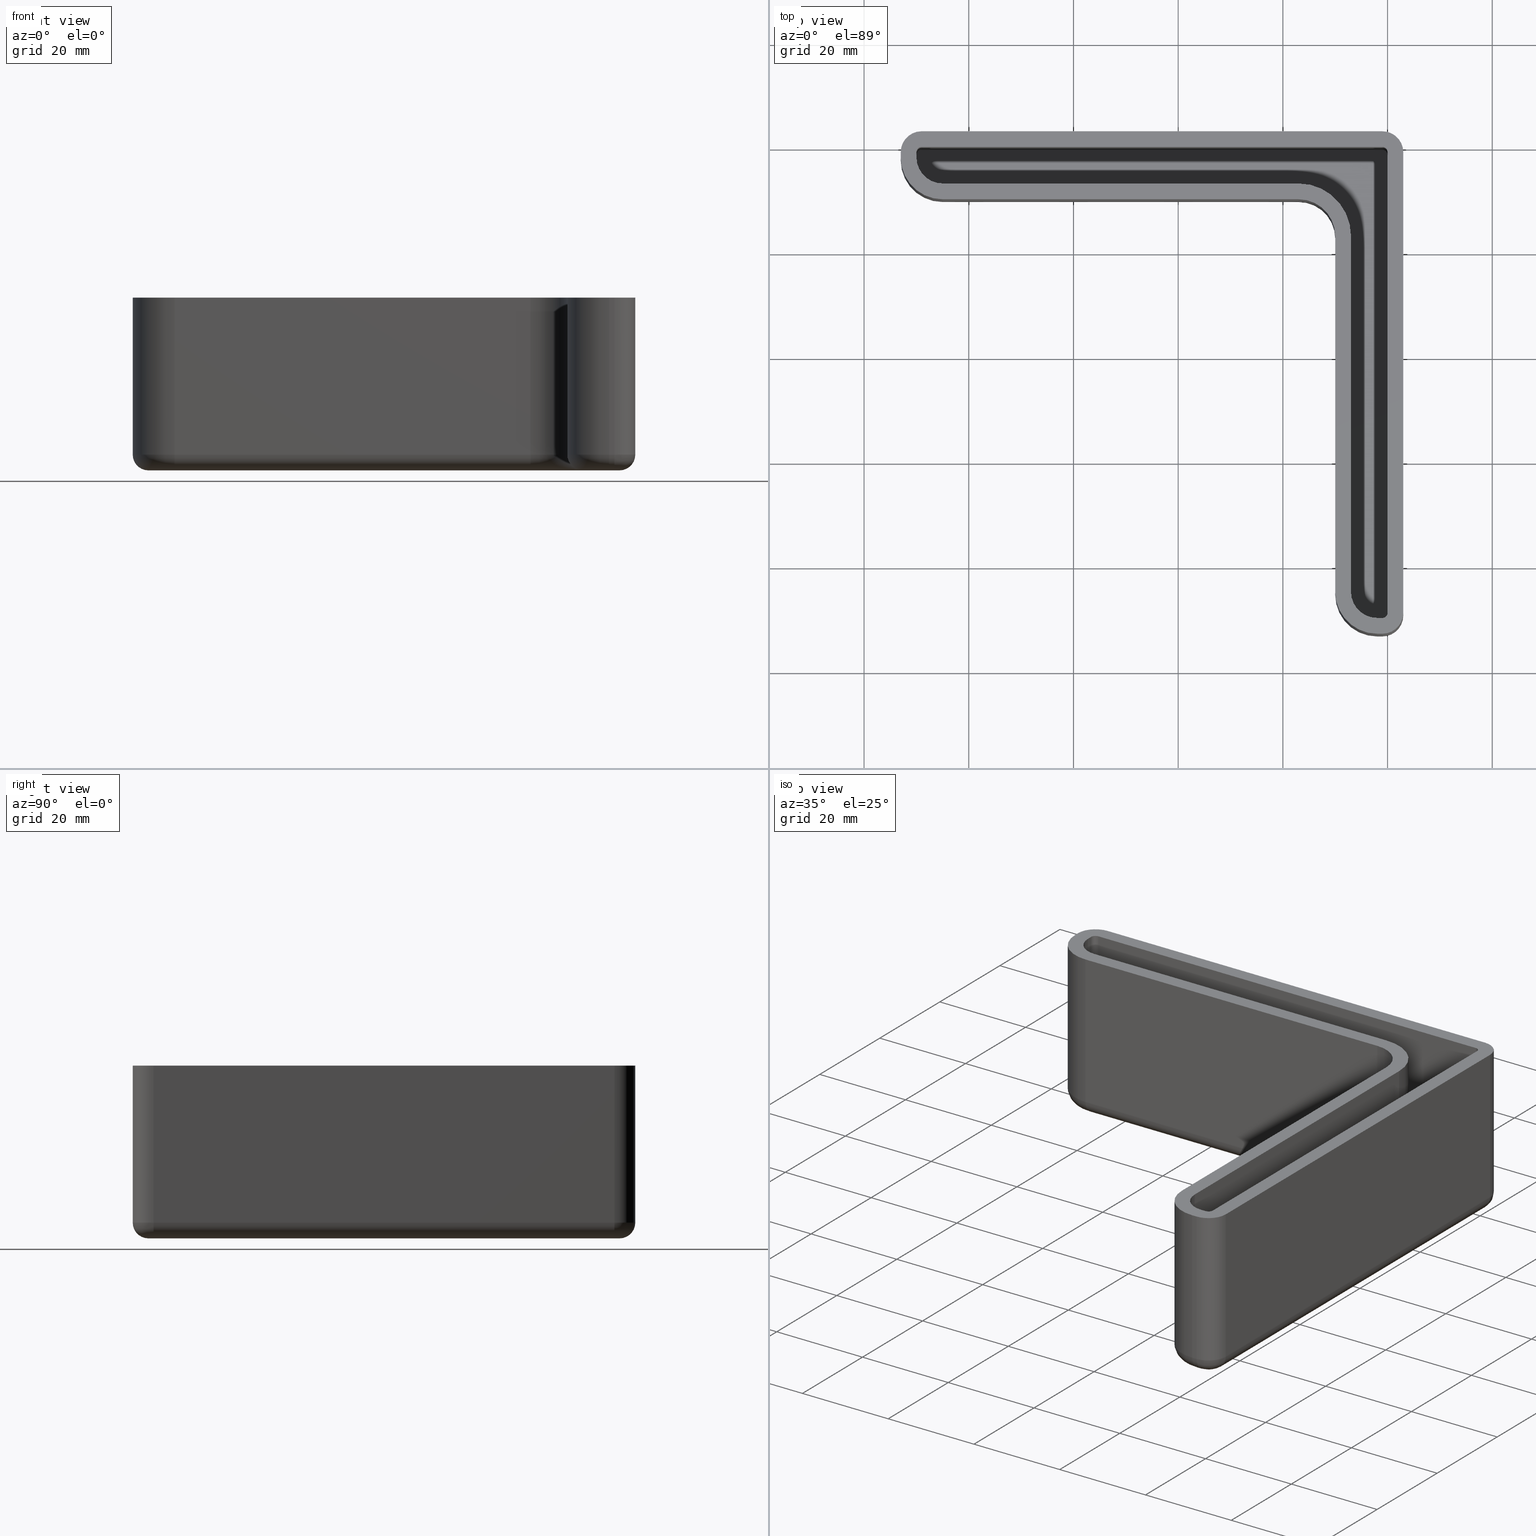
[diagram: canonical four-view strip — front | top / right | iso, engineering-drawing reading convention]
A machine part, canonical four-view strip (front | top / right | iso — engineering-drawing reading convention). The complete STEP part file that produces these views, byte-faithful:
ISO-10303-21;
HEADER;
FILE_DESCRIPTION( ( 'STEP AP203' ), '1' );
FILE_NAME( 'C:/Documents and Settings/JP/�f�X�N�g�b�v/�_�E�����[�h�pCAD�f�[�^/���ӎR�`�|/L90E/L90E.step', '2022-07-22T02:31:01', ( ' ' ), ( ' ' ), 'XStep 1.0', ' ', ' ' );
FILE_SCHEMA( ( 'CONFIG_CONTROL_DESIGN' ) );
ENDSEC;
DATA;
#1 = DESIGN_CONTEXT( '', #27, 'design' );
#2 = APPLICATION_PROTOCOL_DEFINITION( 'INTERNATIONAL STANDARD', 'config_control_design', 1994, #27 );
#3 = PRODUCT_CATEGORY_RELATIONSHIP( 'NONE', 'NONE', #28, #29 );
#4 = DATE_AND_TIME( #30, #31 );
#5 = DATE_TIME_ROLE( 'creation_date' );
#6 = DATE_TIME_ROLE( 'classification_date' );
#7 = PERSON_AND_ORGANIZATION_ROLE( 'creator' );
#8 = PERSON_AND_ORGANIZATION_ROLE( 'design_supplier' );
#9 = PERSON_AND_ORGANIZATION_ROLE( 'classification_officer' );
#10 = PERSON_AND_ORGANIZATION_ROLE( 'design_owner' );
#11 = APPROVAL_PERSON_ORGANIZATION( #32, #33, #34 );
#12 = APPROVAL_DATE_TIME( #4, #33 );
#13 = CC_DESIGN_APPROVAL( #33, ( #35, #36, #37 ) );
#14 = CC_DESIGN_DATE_AND_TIME_ASSIGNMENT( #4, #5, ( #37 ) );
#15 = CC_DESIGN_DATE_AND_TIME_ASSIGNMENT( #4, #6, ( #35 ) );
#16 = CC_DESIGN_PERSON_AND_ORGANIZATION_ASSIGNMENT( #32, #10, ( #38 ) );
#17 = CC_DESIGN_PERSON_AND_ORGANIZATION_ASSIGNMENT( #32, #7, ( #37 ) );
#18 = CC_DESIGN_PERSON_AND_ORGANIZATION_ASSIGNMENT( #32, #7, ( #36 ) );
#19 = CC_DESIGN_PERSON_AND_ORGANIZATION_ASSIGNMENT( #32, #8, ( #36 ) );
#20 = CC_DESIGN_SECURITY_CLASSIFICATION( #35, ( #36 ) );
#21 = CC_DESIGN_PERSON_AND_ORGANIZATION_ASSIGNMENT( #32, #9, ( #35 ) );
#22 = SHAPE_DEFINITION_REPRESENTATION( #39, #40 );
#23 =  ( GEOMETRIC_REPRESENTATION_CONTEXT( 3 )GLOBAL_UNCERTAINTY_ASSIGNED_CONTEXT( ( #43 ) )GLOBAL_UNIT_ASSIGNED_CONTEXT( ( #45, #46, #47 ) )REPRESENTATION_CONTEXT( 'NONE', 'WORKSPACE' ) );
#27 = APPLICATION_CONTEXT( 'CONFIGURATION CONTROLLED 3D DESIGNS OF MECHANICAL PARTS AND ASSEMBLIES' );
#28 = PRODUCT_CATEGORY( 'part', 'NONE' );
#29 = PRODUCT_RELATED_PRODUCT_CATEGORY( 'detail', ' ', ( #38 ) );
#30 = CALENDAR_DATE( 2022, 22, 6 );
#31 = LOCAL_TIME( 11, 31, 1.00000000000000, #49 );
#32 = PERSON_AND_ORGANIZATION( #50, #51 );
#33 = APPROVAL( #52, 'SOLID MODEL' );
#34 = APPROVAL_ROLE( 'APPROVED' );
#35 = SECURITY_CLASSIFICATION( '', '', #53 );
#36 = PRODUCT_DEFINITION_FORMATION_WITH_SPECIFIED_SOURCE( ' ', 'NONE', #38, .NOT_KNOWN. );
#37 = PRODUCT_DEFINITION( 'NONE', 'NONE', #36, #1 );
#38 = PRODUCT( '1', '1', 'PART-1-DESC', ( #54 ) );
#39 = PRODUCT_DEFINITION_SHAPE( 'NONE', 'NONE', #37 );
#40 = ADVANCED_BREP_SHAPE_REPRESENTATION( '1', ( #55, #56 ), #23 );
#43 = UNCERTAINTY_MEASURE_WITH_UNIT( LENGTH_MEASURE( 0.00100000000000000 ), #45, '', '' );
#45 =  ( CONVERSION_BASED_UNIT( 'MILLIMETRE', #59 )LENGTH_UNIT(  )NAMED_UNIT( #62 ) );
#46 =  ( NAMED_UNIT( #64 )PLANE_ANGLE_UNIT(  )SI_UNIT( $, .RADIAN. ) );
#47 =  ( NAMED_UNIT( #64 )SOLID_ANGLE_UNIT(  )SI_UNIT( $, .STERADIAN. ) );
#49 = COORDINATED_UNIVERSAL_TIME_OFFSET( 9, 0, .AHEAD. );
#50 = PERSON( '', 'UNSPECIFIED', $, $, $, $ );
#51 = ORGANIZATION( 'UNSPECIFIED', 'UNSPECIFIED', 'UNSPECIFIED' );
#52 = APPROVAL_STATUS( 'approved' );
#53 = SECURITY_CLASSIFICATION_LEVEL( 'unclassified' );
#54 = MECHANICAL_CONTEXT( '', #27, 'mechanical' );
#55 = MANIFOLD_SOLID_BREP( '1', #70 );
#56 = AXIS2_PLACEMENT_3D( '', #71, #72, #73 );
#59 = LENGTH_MEASURE_WITH_UNIT( LENGTH_MEASURE( 1.00000000000000 ), #74 );
#62 = DIMENSIONAL_EXPONENTS( 1.00000000000000, 0.000000000000000, 0.000000000000000, 0.000000000000000, 0.000000000000000, 0.000000000000000, 0.000000000000000 );
#64 = DIMENSIONAL_EXPONENTS( 0.000000000000000, 0.000000000000000, 0.000000000000000, 0.000000000000000, 0.000000000000000, 0.000000000000000, 0.000000000000000 );
#70 = CLOSED_SHELL( '', ( #75, #76, #77, #78, #79, #80, #81, #82, #83, #84, #85, #86, #87, #88, #89, #90, #91, #92, #93, #94, #95, #96, #97, #98, #99, #100, #101, #102, #103, #104, #105, #106, #107, #108, #109, #110, #111, #112, #113 ) );
#71 = CARTESIAN_POINT( '', ( 0.000000000000000, 0.000000000000000, 0.000000000000000 ) );
#72 = DIRECTION( '', ( 0.000000000000000, 0.000000000000000, 1.00000000000000 ) );
#73 = DIRECTION( '', ( 1.00000000000000, 0.000000000000000, 0.000000000000000 ) );
#74 =  ( NAMED_UNIT( #62 )LENGTH_UNIT(  )SI_UNIT( .MILLI., .METRE. ) );
#75 = ADVANCED_FACE( '', ( #115 ), #116, .T. );
#76 = ADVANCED_FACE( '', ( #117 ), #118, .T. );
#77 = ADVANCED_FACE( '', ( #119 ), #120, .F. );
#78 = ADVANCED_FACE( '', ( #121 ), #122, .F. );
#79 = ADVANCED_FACE( '', ( #123 ), #124, .T. );
#80 = ADVANCED_FACE( '', ( #125 ), #126, .F. );
#81 = ADVANCED_FACE( '', ( #127 ), #128, .T. );
#82 = ADVANCED_FACE( '', ( #129 ), #130, .T. );
#83 = ADVANCED_FACE( '', ( #131 ), #132, .T. );
#84 = ADVANCED_FACE( '', ( #133, #134 ), #135, .T. );
#85 = ADVANCED_FACE( '', ( #136 ), #137, .F. );
#86 = ADVANCED_FACE( '', ( #138 ), #139, .T. );
#87 = ADVANCED_FACE( '', ( #140 ), #141, .T. );
#88 = ADVANCED_FACE( '', ( #142 ), #143, .T. );
#89 = ADVANCED_FACE( '', ( #144 ), #145, .F. );
#90 = ADVANCED_FACE( '', ( #146 ), #147, .T. );
#91 = ADVANCED_FACE( '', ( #148 ), #149, .F. );
#92 = ADVANCED_FACE( '', ( #150 ), #151, .T. );
#93 = ADVANCED_FACE( '', ( #152 ), #153, .T. );
#94 = ADVANCED_FACE( '', ( #154 ), #155, .T. );
#95 = ADVANCED_FACE( '', ( #156 ), #157, .F. );
#96 = ADVANCED_FACE( '', ( #158 ), #159, .F. );
#97 = ADVANCED_FACE( '', ( #160 ), #161, .F. );
#98 = ADVANCED_FACE( '', ( #162 ), #163, .F. );
#99 = ADVANCED_FACE( '', ( #164 ), #165, .T. );
#100 = ADVANCED_FACE( '', ( #166 ), #167, .F. );
#101 = ADVANCED_FACE( '', ( #168 ), #169, .T. );
#102 = ADVANCED_FACE( '', ( #170 ), #171, .T. );
#103 = ADVANCED_FACE( '', ( #172 ), #173, .F. );
#104 = ADVANCED_FACE( '', ( #174 ), #175, .T. );
#105 = ADVANCED_FACE( '', ( #176 ), #177, .T. );
#106 = ADVANCED_FACE( '', ( #178 ), #179, .F. );
#107 = ADVANCED_FACE( '', ( #180 ), #181, .F. );
#108 = ADVANCED_FACE( '', ( #182 ), #183, .T. );
#109 = ADVANCED_FACE( '', ( #184 ), #185, .F. );
#110 = ADVANCED_FACE( '', ( #186 ), #187, .F. );
#111 = ADVANCED_FACE( '', ( #188 ), #189, .T. );
#112 = ADVANCED_FACE( '', ( #190 ), #191, .T. );
#113 = ADVANCED_FACE( '', ( #192 ), #193, .T. );
#115 = FACE_OUTER_BOUND( '', #194, .T. );
#116 = CYLINDRICAL_SURFACE( '', #195, 3.00000000000000 );
#117 = FACE_OUTER_BOUND( '', #196, .T. );
#118 = CYLINDRICAL_SURFACE( '', #197, 3.00000000000000 );
#119 = FACE_OUTER_BOUND( '', #198, .T. );
#120 = CYLINDRICAL_SURFACE( '', #199, 1.00000000000000 );
#121 = FACE_OUTER_BOUND( '', #200, .T. );
#122 = PLANE( '', #201 );
#123 = FACE_OUTER_BOUND( '', #202, .T. );
#124 = PLANE( '', #203 );
#125 = FACE_OUTER_BOUND( '', #204, .T. );
#126 = ( B_SPLINE_SURFACE( 2, 2, ( ( #206, #207, #208 ), ( #209, #210, #211 ), ( #212, #213, #214 ) ), .UNSPECIFIED., .F., .F., .F. )B_SPLINE_SURFACE_WITH_KNOTS( ( 3, 3 ), ( 3, 3 ), ( -1.57079632679490, 0.000000000000000 ), ( -1.57079632679490, 9.71445146547016E-016 ), .UNSPECIFIED. )RATIONAL_B_SPLINE_SURFACE( ( ( 1.00000000000000, 0.707106781186547, 1.00000000000000 ), ( 0.707106781186539, 0.499999999999993, 0.707106781186539 ), ( 1.00000000000000, 0.707106781186547, 1.00000000000000 ) ) )BOUNDED_SURFACE(  )REPRESENTATION_ITEM( '' )GEOMETRIC_REPRESENTATION_ITEM(  )SURFACE(  ) );
#127 = FACE_OUTER_BOUND( '', #221, .T. );
#128 = CYLINDRICAL_SURFACE( '', #222, 3.00000000000000 );
#129 = FACE_OUTER_BOUND( '', #223, .T. );
#130 = CYLINDRICAL_SURFACE( '', #224, 4.00000000000000 );
#131 = FACE_OUTER_BOUND( '', #225, .T. );
#132 = PLANE( '', #226 );
#133 = FACE_OUTER_BOUND( '', #227, .T. );
#134 = FACE_BOUND( '', #228, .T. );
#135 = PLANE( '', #229 );
#136 = FACE_OUTER_BOUND( '', #230, .T. );
#137 = PLANE( '', #231 );
#138 = FACE_OUTER_BOUND( '', #232, .T. );
#139 = TOROIDAL_SURFACE( '', #233, 10.0000000000000, 3.00000000000000 );
#140 = FACE_OUTER_BOUND( '', #234, .T. );
#141 = CYLINDRICAL_SURFACE( '', #235, 3.00000000000000 );
#142 = FACE_OUTER_BOUND( '', #236, .T. );
#143 = TOROIDAL_SURFACE( '', #237, 5.00000000000000, 3.00000000000000 );
#144 = FACE_OUTER_BOUND( '', #238, .T. );
#145 = ( B_SPLINE_SURFACE( 2, 2, ( ( #240, #241, #242 ), ( #243, #244, #245 ), ( #246, #247, #248 ) ), .UNSPECIFIED., .F., .F., .F. )B_SPLINE_SURFACE_WITH_KNOTS( ( 3, 3 ), ( 3, 3 ), ( -1.57079632679490, 0.000000000000000 ), ( -3.14159265358979, -1.57079632679490 ), .UNSPECIFIED. )RATIONAL_B_SPLINE_SURFACE( ( ( 1.00000000000000, 0.707106781186547, 1.00000000000000 ), ( 0.707106781186547, 0.500000000000000, 0.707106781186547 ), ( 1.00000000000000, 0.707106781186547, 1.00000000000000 ) ) )BOUNDED_SURFACE(  )REPRESENTATION_ITEM( '' )GEOMETRIC_REPRESENTATION_ITEM(  )SURFACE(  ) );
#146 = FACE_OUTER_BOUND( '', #255, .T. );
#147 = CYLINDRICAL_SURFACE( '', #256, 3.00000000000000 );
#148 = FACE_OUTER_BOUND( '', #257, .T. );
#149 = ( B_SPLINE_SURFACE( 2, 2, ( ( #259, #260, #261 ), ( #262, #263, #264 ), ( #265, #266, #267 ) ), .UNSPECIFIED., .F., .F., .F. )B_SPLINE_SURFACE_WITH_KNOTS( ( 3, 3 ), ( 3, 3 ), ( -1.57079632679490, 0.000000000000000 ), ( 1.57079632679490, 3.14159265358979 ), .UNSPECIFIED. )RATIONAL_B_SPLINE_SURFACE( ( ( 1.00000000000000, 0.707106781186547, 1.00000000000000 ), ( 0.707106781186547, 0.500000000000000, 0.707106781186547 ), ( 1.00000000000000, 0.707106781186547, 1.00000000000000 ) ) )BOUNDED_SURFACE(  )REPRESENTATION_ITEM( '' )GEOMETRIC_REPRESENTATION_ITEM(  )SURFACE(  ) );
#150 = FACE_OUTER_BOUND( '', #274, .T. );
#151 = CYLINDRICAL_SURFACE( '', #275, 8.00000000000000 );
#152 = FACE_OUTER_BOUND( '', #276, .T. );
#153 = TOROIDAL_SURFACE( '', #277, 5.00000000000000, 3.00000000000000 );
#154 = FACE_OUTER_BOUND( '', #278, .T. );
#155 = CYLINDRICAL_SURFACE( '', #279, 3.00000000000000 );
#156 = FACE_OUTER_BOUND( '', #280, .T. );
#157 = CYLINDRICAL_SURFACE( '', #281, 1.00000000000000 );
#158 = FACE_OUTER_BOUND( '', #282, .T. );
#159 = CYLINDRICAL_SURFACE( '', #283, 5.00000000000000 );
#160 = FACE_OUTER_BOUND( '', #284, .T. );
#161 = PLANE( '', #285 );
#162 = FACE_OUTER_BOUND( '', #286, .T. );
#163 = PLANE( '', #287 );
#164 = FACE_OUTER_BOUND( '', #288, .T. );
#165 = CYLINDRICAL_SURFACE( '', #289, 4.00000000000000 );
#166 = FACE_OUTER_BOUND( '', #290, .T. );
#167 = PLANE( '', #291 );
#168 = FACE_OUTER_BOUND( '', #292, .T. );
#169 = PLANE( '', #293 );
#170 = FACE_OUTER_BOUND( '', #294, .T. );
#171 = CYLINDRICAL_SURFACE( '', #295, 10.0000000000000 );
#172 = FACE_OUTER_BOUND( '', #296, .T. );
#173 = PLANE( '', #297 );
#174 = FACE_OUTER_BOUND( '', #298, .T. );
#175 = PLANE( '', #299 );
#176 = FACE_OUTER_BOUND( '', #300, .T. );
#177 = PLANE( '', #301 );
#178 = FACE_OUTER_BOUND( '', #302, .T. );
#179 = CYLINDRICAL_SURFACE( '', #303, 1.00000000000000 );
#180 = FACE_OUTER_BOUND( '', #304, .T. );
#181 = PLANE( '', #305 );
#182 = FACE_OUTER_BOUND( '', #306, .T. );
#183 = CYLINDRICAL_SURFACE( '', #307, 8.00000000000000 );
#184 = FACE_OUTER_BOUND( '', #308, .T. );
#185 = CYLINDRICAL_SURFACE( '', #309, 7.00000000000000 );
#186 = FACE_OUTER_BOUND( '', #310, .T. );
#187 = CYLINDRICAL_SURFACE( '', #311, 5.00000000000000 );
#188 = FACE_OUTER_BOUND( '', #312, .T. );
#189 = CYLINDRICAL_SURFACE( '', #313, 4.00000000000000 );
#190 = FACE_OUTER_BOUND( '', #314, .T. );
#191 = PLANE( '', #315 );
#192 = FACE_OUTER_BOUND( '', #316, .T. );
#193 = PLANE( '', #317 );
#194 = EDGE_LOOP( '', ( #318, #319, #320, #321 ) );
#195 = AXIS2_PLACEMENT_3D( '', #322, #323, #324 );
#196 = EDGE_LOOP( '', ( #325, #326, #327, #328 ) );
#197 = AXIS2_PLACEMENT_3D( '', #329, #330, #331 );
#198 = EDGE_LOOP( '', ( #332, #333, #334, #335 ) );
#199 = AXIS2_PLACEMENT_3D( '', #336, #337, #338 );
#200 = EDGE_LOOP( '', ( #339, #340, #341, #342 ) );
#201 = AXIS2_PLACEMENT_3D( '', #343, #344, #345 );
#202 = EDGE_LOOP( '', ( #346, #347, #348, #349, #350, #351, #352, #353, #354, #355, #356, #357 ) );
#203 = AXIS2_PLACEMENT_3D( '', #358, #359, #360 );
#204 = EDGE_LOOP( '', ( #361, #362, #363, #364 ) );
#206 = CARTESIAN_POINT( '', ( -89.0000000000000, 6.93889390390723E-015, -33.0000000000000 ) );
#207 = CARTESIAN_POINT( '', ( -90.0000000000000, 6.13317366673350E-015, -33.0000000000000 ) );
#208 = CARTESIAN_POINT( '', ( -90.0000000000000, -0.999999999999980, -33.0000000000000 ) );
#209 = CARTESIAN_POINT( '', ( -89.0000000000000, 2.99999999999999, -33.0000000000000 ) );
#210 = CARTESIAN_POINT( '', ( -93.0000000000000, 3.00000000000000, -33.0000000000000 ) );
#211 = CARTESIAN_POINT( '', ( -93.0000000000000, -1.00000000000000, -33.0000000000000 ) );
#212 = CARTESIAN_POINT( '', ( -89.0000000000000, 3.00000000000001, -30.0000000000000 ) );
#213 = CARTESIAN_POINT( '', ( -93.0000000000000, 3.00000000000001, -30.0000000000000 ) );
#214 = CARTESIAN_POINT( '', ( -93.0000000000000, -0.999999999999987, -30.0000000000000 ) );
#221 = EDGE_LOOP( '', ( #365, #366, #367, #368 ) );
#222 = AXIS2_PLACEMENT_3D( '', #369, #370, #371 );
#223 = EDGE_LOOP( '', ( #372, #373, #374, #375 ) );
#224 = AXIS2_PLACEMENT_3D( '', #376, #377, #378 );
#225 = EDGE_LOOP( '', ( #379, #380, #381, #382 ) );
#226 = AXIS2_PLACEMENT_3D( '', #383, #384, #385 );
#227 = EDGE_LOOP( '', ( #386, #387, #388, #389, #390, #391, #392, #393, #394, #395, #396, #397 ) );
#228 = EDGE_LOOP( '', ( #398, #399, #400, #401, #402, #403, #404, #405, #406, #407, #408, #409 ) );
#229 = AXIS2_PLACEMENT_3D( '', #410, #411, #412 );
#230 = EDGE_LOOP( '', ( #413, #414, #415, #416, #417, #418, #419, #420, #421, #422, #423, #424 ) );
#231 = AXIS2_PLACEMENT_3D( '', #425, #426, #427 );
#232 = EDGE_LOOP( '', ( #428, #429, #430, #431 ) );
#233 = AXIS2_PLACEMENT_3D( '', #432, #433, #434 );
#234 = EDGE_LOOP( '', ( #435, #436, #437, #438 ) );
#235 = AXIS2_PLACEMENT_3D( '', #439, #440, #441 );
#236 = EDGE_LOOP( '', ( #442, #443, #444, #445 ) );
#237 = AXIS2_PLACEMENT_3D( '', #446, #447, #448 );
#238 = EDGE_LOOP( '', ( #449, #450, #451, #452 ) );
#240 = CARTESIAN_POINT( '', ( -1.99493199737333E-014, -0.999999999999992, -33.0000000000000 ) );
#241 = CARTESIAN_POINT( '', ( -1.90128383668739E-014, 4.90653893338680E-015, -33.0000000000000 ) );
#242 = CARTESIAN_POINT( '', ( -1.00000000000002, 4.33680868994202E-015, -33.0000000000000 ) );
#243 = CARTESIAN_POINT( '', ( 2.99999999999998, -0.999999999999992, -33.0000000000000 ) );
#244 = CARTESIAN_POINT( '', ( 2.99999999999998, 3.00000000000002, -33.0000000000000 ) );
#245 = CARTESIAN_POINT( '', ( -1.00000000000002, 3.00000000000000, -33.0000000000000 ) );
#246 = CARTESIAN_POINT( '', ( 2.99999999999998, -0.999999999999993, -30.0000000000000 ) );
#247 = CARTESIAN_POINT( '', ( 2.99999999999998, 3.00000000000001, -30.0000000000000 ) );
#248 = CARTESIAN_POINT( '', ( -1.00000000000002, 3.00000000000000, -30.0000000000000 ) );
#255 = EDGE_LOOP( '', ( #453, #454, #455, #456 ) );
#256 = AXIS2_PLACEMENT_3D( '', #457, #458, #459 );
#257 = EDGE_LOOP( '', ( #460, #461, #462, #463 ) );
#259 = CARTESIAN_POINT( '', ( -1.00000000000001, -90.0000000000000, -33.0000000000000 ) );
#260 = CARTESIAN_POINT( '', ( -1.47196168001604E-014, -90.0000000000000, -33.0000000000000 ) );
#261 = CARTESIAN_POINT( '', ( -6.93889390390723E-015, -89.0000000000000, -33.0000000000000 ) );
#262 = CARTESIAN_POINT( '', ( -1.00000000000002, -93.0000000000000, -33.0000000000000 ) );
#263 = CARTESIAN_POINT( '', ( 3.00000000000000, -93.0000000000000, -33.0000000000000 ) );
#264 = CARTESIAN_POINT( '', ( 2.99999999999998, -89.0000000000000, -33.0000000000000 ) );
#265 = CARTESIAN_POINT( '', ( -1.00000000000001, -93.0000000000000, -30.0000000000000 ) );
#266 = CARTESIAN_POINT( '', ( 2.99999999999998, -93.0000000000000, -30.0000000000000 ) );
#267 = CARTESIAN_POINT( '', ( 3.00000000000000, -89.0000000000000, -30.0000000000000 ) );
#274 = EDGE_LOOP( '', ( #464, #465, #466, #467 ) );
#275 = AXIS2_PLACEMENT_3D( '', #468, #469, #470 );
#276 = EDGE_LOOP( '', ( #471, #472, #473, #474 ) );
#277 = AXIS2_PLACEMENT_3D( '', #475, #476, #477 );
#278 = EDGE_LOOP( '', ( #478, #479, #480, #481 ) );
#279 = AXIS2_PLACEMENT_3D( '', #482, #483, #484 );
#280 = EDGE_LOOP( '', ( #485, #486, #487, #488 ) );
#281 = AXIS2_PLACEMENT_3D( '', #489, #490, #491 );
#282 = EDGE_LOOP( '', ( #492, #493, #494, #495 ) );
#283 = AXIS2_PLACEMENT_3D( '', #496, #497, #498 );
#284 = EDGE_LOOP( '', ( #499, #500, #501, #502 ) );
#285 = AXIS2_PLACEMENT_3D( '', #503, #504, #505 );
#286 = EDGE_LOOP( '', ( #506, #507, #508, #509 ) );
#287 = AXIS2_PLACEMENT_3D( '', #510, #511, #512 );
#288 = EDGE_LOOP( '', ( #513, #514, #515, #516 ) );
#289 = AXIS2_PLACEMENT_3D( '', #517, #518, #519 );
#290 = EDGE_LOOP( '', ( #520, #521, #522, #523 ) );
#291 = AXIS2_PLACEMENT_3D( '', #524, #525, #526 );
#292 = EDGE_LOOP( '', ( #527, #528, #529, #530 ) );
#293 = AXIS2_PLACEMENT_3D( '', #531, #532, #533 );
#294 = EDGE_LOOP( '', ( #534, #535, #536, #537 ) );
#295 = AXIS2_PLACEMENT_3D( '', #538, #539, #540 );
#296 = EDGE_LOOP( '', ( #541, #542, #543, #544 ) );
#297 = AXIS2_PLACEMENT_3D( '', #545, #546, #547 );
#298 = EDGE_LOOP( '', ( #548, #549, #550, #551 ) );
#299 = AXIS2_PLACEMENT_3D( '', #552, #553, #554 );
#300 = EDGE_LOOP( '', ( #555, #556, #557, #558 ) );
#301 = AXIS2_PLACEMENT_3D( '', #559, #560, #561 );
#302 = EDGE_LOOP( '', ( #562, #563, #564, #565 ) );
#303 = AXIS2_PLACEMENT_3D( '', #566, #567, #568 );
#304 = EDGE_LOOP( '', ( #569, #570, #571, #572 ) );
#305 = AXIS2_PLACEMENT_3D( '', #573, #574, #575 );
#306 = EDGE_LOOP( '', ( #576, #577, #578, #579 ) );
#307 = AXIS2_PLACEMENT_3D( '', #580, #581, #582 );
#308 = EDGE_LOOP( '', ( #583, #584, #585, #586 ) );
#309 = AXIS2_PLACEMENT_3D( '', #587, #588, #589 );
#310 = EDGE_LOOP( '', ( #590, #591, #592, #593 ) );
#311 = AXIS2_PLACEMENT_3D( '', #594, #595, #596 );
#312 = EDGE_LOOP( '', ( #597, #598, #599, #600 ) );
#313 = AXIS2_PLACEMENT_3D( '', #601, #602, #603 );
#314 = EDGE_LOOP( '', ( #604, #605, #606, #607 ) );
#315 = AXIS2_PLACEMENT_3D( '', #608, #609, #610 );
#316 = EDGE_LOOP( '', ( #611, #612, #613, #614 ) );
#317 = AXIS2_PLACEMENT_3D( '', #615, #616, #617 );
#318 = ORIENTED_EDGE( '', *, *, #618, .T. );
#319 = ORIENTED_EDGE( '', *, *, #619, .T. );
#320 = ORIENTED_EDGE( '', *, *, #620, .T. );
#321 = ORIENTED_EDGE( '', *, *, #621, .T. );
#322 = CARTESIAN_POINT( '', ( -26.0000000000000, -90.0000000000000, -30.0000000000000 ) );
#323 = DIRECTION( '', ( 1.00000000000000, 5.47820073070147E-033, -3.58678896750442E-017 ) );
#324 = DIRECTION( '', ( -2.53624280160747E-017, -0.707106781186548, -0.707106781186547 ) );
#325 = ORIENTED_EDGE( '', *, *, #622, .T. );
#326 = ORIENTED_EDGE( '', *, *, #623, .T. );
#327 = ORIENTED_EDGE( '', *, *, #624, .F. );
#328 = ORIENTED_EDGE( '', *, *, #625, .T. );
#329 = CARTESIAN_POINT( '', ( -90.0000000000000, -22.5000000000000, -30.0000000000000 ) );
#330 = DIRECTION( '', ( 0.000000000000000, 1.00000000000000, 8.65927457071935E-017 ) );
#331 = DIRECTION( '', ( -0.707106781186548, 6.12303176911188E-017, -0.707106781186547 ) );
#332 = ORIENTED_EDGE( '', *, *, #626, .F. );
#333 = ORIENTED_EDGE( '', *, *, #627, .T. );
#334 = ORIENTED_EDGE( '', *, *, #628, .T. );
#335 = ORIENTED_EDGE( '', *, *, #629, .T. );
#336 = CARTESIAN_POINT( '', ( -1.00000000000002, -0.999999999999993, -30.0000000000000 ) );
#337 = DIRECTION( '', ( -3.58678896750442E-017, 8.65927457071936E-017, -1.00000000000000 ) );
#338 = DIRECTION( '', ( 0.707106781186549, 0.707106781186546, 3.58678896750440E-017 ) );
#339 = ORIENTED_EDGE( '', *, *, #627, .F. );
#340 = ORIENTED_EDGE( '', *, *, #630, .T. );
#341 = ORIENTED_EDGE( '', *, *, #631, .F. );
#342 = ORIENTED_EDGE( '', *, *, #632, .F. );
#343 = CARTESIAN_POINT( '', ( -2.08166817117217E-014, -90.0000000000000, -30.0000000000000 ) );
#344 = DIRECTION( '', ( 1.00000000000000, 3.58732406867153E-049, -3.58678896750442E-017 ) );
#345 = DIRECTION( '', ( 3.58678896750442E-017, -8.65927457071936E-017, 1.00000000000000 ) );
#346 = ORIENTED_EDGE( '', *, *, #633, .T. );
#347 = ORIENTED_EDGE( '', *, *, #634, .T. );
#348 = ORIENTED_EDGE( '', *, *, #635, .T. );
#349 = ORIENTED_EDGE( '', *, *, #636, .T. );
#350 = ORIENTED_EDGE( '', *, *, #637, .F. );
#351 = ORIENTED_EDGE( '', *, *, #638, .F. );
#352 = ORIENTED_EDGE( '', *, *, #639, .T. );
#353 = ORIENTED_EDGE( '', *, *, #640, .F. );
#354 = ORIENTED_EDGE( '', *, *, #641, .T. );
#355 = ORIENTED_EDGE( '', *, *, #630, .F. );
#356 = ORIENTED_EDGE( '', *, *, #626, .T. );
#357 = ORIENTED_EDGE( '', *, *, #642, .T. );
#358 = CARTESIAN_POINT( '', ( -45.0000000000000, -45.0000000000000, -30.0000000000000 ) );
#359 = DIRECTION( '', ( 3.58678896750442E-017, -8.65927457071936E-017, 1.00000000000000 ) );
#360 = DIRECTION( '', ( -1.00000000000000, 1.06733799631484E-048, 3.58678896750442E-017 ) );
#361 = ORIENTED_EDGE( '', *, *, #643, .T. );
#362 = ORIENTED_EDGE( '', *, *, #644, .T. );
#363 = ORIENTED_EDGE( '', *, *, #622, .F. );
#364 = ORIENTED_EDGE( '', *, *, #645, .T. );
#365 = ORIENTED_EDGE( '', *, *, #646, .T. );
#366 = ORIENTED_EDGE( '', *, *, #647, .T. );
#367 = ORIENTED_EDGE( '', *, *, #643, .F. );
#368 = ORIENTED_EDGE( '', *, *, #648, .T. );
#369 = CARTESIAN_POINT( '', ( -22.5000000000000, 4.33680868994202E-015, -30.0000000000000 ) );
#370 = DIRECTION( '', ( 1.00000000000000, 2.73910036535073E-033, -3.58678896750442E-017 ) );
#371 = DIRECTION( '', ( -2.53624280160747E-017, 0.707106781186548, -0.707106781186547 ) );
#372 = ORIENTED_EDGE( '', *, *, #645, .F. );
#373 = ORIENTED_EDGE( '', *, *, #649, .T. );
#374 = ORIENTED_EDGE( '', *, *, #650, .T. );
#375 = ORIENTED_EDGE( '', *, *, #651, .T. );
#376 = CARTESIAN_POINT( '', ( -89.0000000000000, -0.999999999999987, -30.0000000000000 ) );
#377 = DIRECTION( '', ( -3.58678896750441E-017, 8.65927457071935E-017, -1.00000000000000 ) );
#378 = DIRECTION( '', ( -0.707106781186552, 0.707106781186543, 8.65927457071933E-017 ) );
#379 = ORIENTED_EDGE( '', *, *, #652, .F. );
#380 = ORIENTED_EDGE( '', *, *, #653, .F. );
#381 = ORIENTED_EDGE( '', *, *, #654, .F. );
#382 = ORIENTED_EDGE( '', *, *, #655, .F. );
#383 = CARTESIAN_POINT( '', ( -10.0000000000000, -6.99999999999999, -30.0000000000000 ) );
#384 = DIRECTION( '', ( -1.00000000000000, -3.58732406867153E-049, 3.58678896750442E-017 ) );
#385 = DIRECTION( '', ( -3.10589904968477E-033, -1.00000000000000, -8.65927457071936E-017 ) );
#386 = ORIENTED_EDGE( '', *, *, #656, .F. );
#387 = ORIENTED_EDGE( '', *, *, #657, .T. );
#388 = ORIENTED_EDGE( '', *, *, #658, .F. );
#389 = ORIENTED_EDGE( '', *, *, #659, .T. );
#390 = ORIENTED_EDGE( '', *, *, #650, .F. );
#391 = ORIENTED_EDGE( '', *, *, #660, .T. );
#392 = ORIENTED_EDGE( '', *, *, #661, .F. );
#393 = ORIENTED_EDGE( '', *, *, #662, .T. );
#394 = ORIENTED_EDGE( '', *, *, #663, .F. );
#395 = ORIENTED_EDGE( '', *, *, #654, .T. );
#396 = ORIENTED_EDGE( '', *, *, #664, .F. );
#397 = ORIENTED_EDGE( '', *, *, #665, .T. );
#398 = ORIENTED_EDGE( '', *, *, #666, .F. );
#399 = ORIENTED_EDGE( '', *, *, #667, .T. );
#400 = ORIENTED_EDGE( '', *, *, #668, .F. );
#401 = ORIENTED_EDGE( '', *, *, #669, .T. );
#402 = ORIENTED_EDGE( '', *, *, #670, .F. );
#403 = ORIENTED_EDGE( '', *, *, #671, .T. );
#404 = ORIENTED_EDGE( '', *, *, #628, .F. );
#405 = ORIENTED_EDGE( '', *, *, #632, .T. );
#406 = ORIENTED_EDGE( '', *, *, #672, .F. );
#407 = ORIENTED_EDGE( '', *, *, #673, .T. );
#408 = ORIENTED_EDGE( '', *, *, #674, .F. );
#409 = ORIENTED_EDGE( '', *, *, #675, .T. );
#410 = CARTESIAN_POINT( '', ( -45.0000000000000, -45.0000000000000, -1.56853586559346E-015 ) );
#411 = DIRECTION( '', ( 3.58678896750442E-017, -8.65927457071936E-017, 1.00000000000000 ) );
#412 = DIRECTION( '', ( -1.00000000000000, 1.06733799631484E-048, 3.58678896750442E-017 ) );
#413 = ORIENTED_EDGE( '', *, *, #621, .F. );
#414 = ORIENTED_EDGE( '', *, *, #676, .F. );
#415 = ORIENTED_EDGE( '', *, *, #677, .F. );
#416 = ORIENTED_EDGE( '', *, *, #678, .F. );
#417 = ORIENTED_EDGE( '', *, *, #679, .F. );
#418 = ORIENTED_EDGE( '', *, *, #680, .F. );
#419 = ORIENTED_EDGE( '', *, *, #623, .F. );
#420 = ORIENTED_EDGE( '', *, *, #644, .F. );
#421 = ORIENTED_EDGE( '', *, *, #647, .F. );
#422 = ORIENTED_EDGE( '', *, *, #681, .F. );
#423 = ORIENTED_EDGE( '', *, *, #682, .F. );
#424 = ORIENTED_EDGE( '', *, *, #683, .F. );
#425 = CARTESIAN_POINT( '', ( -45.0000000000000, -45.0000000000000, -33.0000000000000 ) );
#426 = DIRECTION( '', ( 3.58678896750442E-017, -8.65927457071936E-017, 1.00000000000000 ) );
#427 = DIRECTION( '', ( -1.00000000000000, 1.06733799631484E-048, 3.58678896750442E-017 ) );
#428 = ORIENTED_EDGE( '', *, *, #684, .T. );
#429 = ORIENTED_EDGE( '', *, *, #678, .T. );
#430 = ORIENTED_EDGE( '', *, *, #685, .F. );
#431 = ORIENTED_EDGE( '', *, *, #686, .T. );
#432 = CARTESIAN_POINT( '', ( -17.0000000000000, -17.0000000000000, -30.0000000000000 ) );
#433 = DIRECTION( '', ( -3.58678896750442E-017, 8.65927457071936E-017, -1.00000000000000 ) );
#434 = DIRECTION( '', ( 1.00000000000000, -1.06733799631484E-048, -3.58678896750442E-017 ) );
#435 = ORIENTED_EDGE( '', *, *, #687, .T. );
#436 = ORIENTED_EDGE( '', *, *, #679, .T. );
#437 = ORIENTED_EDGE( '', *, *, #684, .F. );
#438 = ORIENTED_EDGE( '', *, *, #688, .T. );
#439 = CARTESIAN_POINT( '', ( -67.5000000000000, -6.99999999999999, -30.0000000000000 ) );
#440 = DIRECTION( '', ( -1.00000000000000, 5.47820073070147E-033, 8.26845232435749E-017 ) );
#441 = DIRECTION( '', ( -5.84667870847085E-017, -0.707106781186547, -0.707106781186548 ) );
#442 = ORIENTED_EDGE( '', *, *, #624, .T. );
#443 = ORIENTED_EDGE( '', *, *, #680, .T. );
#444 = ORIENTED_EDGE( '', *, *, #687, .F. );
#445 = ORIENTED_EDGE( '', *, *, #689, .T. );
#446 = CARTESIAN_POINT( '', ( -85.0000000000000, -1.99999999999999, -30.0000000000000 ) );
#447 = DIRECTION( '', ( 3.58678896750442E-017, -8.65927457071936E-017, 1.00000000000000 ) );
#448 = DIRECTION( '', ( -1.00000000000000, 1.06733799631484E-048, 3.58678896750442E-017 ) );
#449 = ORIENTED_EDGE( '', *, *, #690, .T. );
#450 = ORIENTED_EDGE( '', *, *, #681, .T. );
#451 = ORIENTED_EDGE( '', *, *, #646, .F. );
#452 = ORIENTED_EDGE( '', *, *, #691, .T. );
#453 = ORIENTED_EDGE( '', *, *, #692, .T. );
#454 = ORIENTED_EDGE( '', *, *, #682, .T. );
#455 = ORIENTED_EDGE( '', *, *, #690, .F. );
#456 = ORIENTED_EDGE( '', *, *, #693, .T. );
#457 = CARTESIAN_POINT( '', ( -1.04083408558608E-014, -67.5000000000000, -30.0000000000000 ) );
#458 = DIRECTION( '', ( -1.09564014614029E-032, 1.00000000000000, 8.65927457071936E-017 ) );
#459 = DIRECTION( '', ( 0.707106781186547, 6.12303176911189E-017, -0.707106781186547 ) );
#460 = ORIENTED_EDGE( '', *, *, #692, .F. );
#461 = ORIENTED_EDGE( '', *, *, #694, .T. );
#462 = ORIENTED_EDGE( '', *, *, #618, .F. );
#463 = ORIENTED_EDGE( '', *, *, #683, .T. );
#464 = ORIENTED_EDGE( '', *, *, #689, .F. );
#465 = ORIENTED_EDGE( '', *, *, #695, .T. );
#466 = ORIENTED_EDGE( '', *, *, #661, .T. );
#467 = ORIENTED_EDGE( '', *, *, #696, .T. );
#468 = CARTESIAN_POINT( '', ( -85.0000000000000, -1.99999999999999, -30.0000000000000 ) );
#469 = DIRECTION( '', ( -3.58678896750442E-017, 8.65927457071936E-017, -1.00000000000000 ) );
#470 = DIRECTION( '', ( -0.707106781186548, -0.707106781186547, -3.58678896750441E-017 ) );
#471 = ORIENTED_EDGE( '', *, *, #697, .T. );
#472 = ORIENTED_EDGE( '', *, *, #676, .T. );
#473 = ORIENTED_EDGE( '', *, *, #620, .F. );
#474 = ORIENTED_EDGE( '', *, *, #698, .T. );
#475 = CARTESIAN_POINT( '', ( -2.00000000000002, -85.0000000000000, -30.0000000000000 ) );
#476 = DIRECTION( '', ( 3.58678896750442E-017, -8.65927457071936E-017, 1.00000000000000 ) );
#477 = DIRECTION( '', ( -1.00000000000000, 1.06733799631484E-048, 3.58678896750442E-017 ) );
#478 = ORIENTED_EDGE( '', *, *, #685, .T. );
#479 = ORIENTED_EDGE( '', *, *, #677, .T. );
#480 = ORIENTED_EDGE( '', *, *, #697, .F. );
#481 = ORIENTED_EDGE( '', *, *, #652, .T. );
#482 = CARTESIAN_POINT( '', ( -7.00000000000002, -26.0000000000000, -30.0000000000000 ) );
#483 = DIRECTION( '', ( 0.000000000000000, -1.00000000000000, -8.65927457071936E-017 ) );
#484 = DIRECTION( '', ( -0.707106781186547, 6.12303176911189E-017, -0.707106781186547 ) );
#485 = ORIENTED_EDGE( '', *, *, #641, .F. );
#486 = ORIENTED_EDGE( '', *, *, #699, .T. );
#487 = ORIENTED_EDGE( '', *, *, #672, .T. );
#488 = ORIENTED_EDGE( '', *, *, #631, .T. );
#489 = CARTESIAN_POINT( '', ( -1.00000000000001, -89.0000000000000, -30.0000000000000 ) );
#490 = DIRECTION( '', ( -3.58678896750442E-017, 8.65927457071936E-017, -1.00000000000000 ) );
#491 = DIRECTION( '', ( 0.707106781186555, -0.707106781186540, -8.65927457071932E-017 ) );
#492 = ORIENTED_EDGE( '', *, *, #639, .F. );
#493 = ORIENTED_EDGE( '', *, *, #700, .T. );
#494 = ORIENTED_EDGE( '', *, *, #674, .T. );
#495 = ORIENTED_EDGE( '', *, *, #701, .T. );
#496 = CARTESIAN_POINT( '', ( -2.00000000000002, -85.0000000000000, -30.0000000000000 ) );
#497 = DIRECTION( '', ( -3.58678896750442E-017, 8.65927457071936E-017, -1.00000000000000 ) );
#498 = DIRECTION( '', ( -0.707106781186547, -0.707106781186548, -3.58678896750442E-017 ) );
#499 = ORIENTED_EDGE( '', *, *, #700, .F. );
#500 = ORIENTED_EDGE( '', *, *, #638, .T. );
#501 = ORIENTED_EDGE( '', *, *, #702, .F. );
#502 = ORIENTED_EDGE( '', *, *, #675, .F. );
#503 = CARTESIAN_POINT( '', ( -7.00000000000002, -6.99999999999999, -30.0000000000000 ) );
#504 = DIRECTION( '', ( -1.00000000000000, -3.58732406867153E-049, 3.58678896750442E-017 ) );
#505 = DIRECTION( '', ( -3.10589904968477E-033, -1.00000000000000, -8.65927457071936E-017 ) );
#506 = ORIENTED_EDGE( '', *, *, #699, .F. );
#507 = ORIENTED_EDGE( '', *, *, #640, .T. );
#508 = ORIENTED_EDGE( '', *, *, #701, .F. );
#509 = ORIENTED_EDGE( '', *, *, #673, .F. );
#510 = CARTESIAN_POINT( '', ( -7.00000000000003, -90.0000000000000, -30.0000000000000 ) );
#511 = DIRECTION( '', ( -3.58732406867153E-049, -1.00000000000000, -8.65927457071936E-017 ) );
#512 = DIRECTION( '', ( -1.00000000000000, -3.10589904968477E-033, 3.58678896750442E-017 ) );
#513 = ORIENTED_EDGE( '', *, *, #694, .F. );
#514 = ORIENTED_EDGE( '', *, *, #703, .T. );
#515 = ORIENTED_EDGE( '', *, *, #656, .T. );
#516 = ORIENTED_EDGE( '', *, *, #704, .T. );
#517 = CARTESIAN_POINT( '', ( -1.00000000000001, -89.0000000000000, -30.0000000000000 ) );
#518 = DIRECTION( '', ( -3.58678896750442E-017, 8.65927457071936E-017, -1.00000000000000 ) );
#519 = DIRECTION( '', ( 0.707106781186542, -0.707106781186553, -8.65927457071938E-017 ) );
#520 = ORIENTED_EDGE( '', *, *, #705, .F. );
#521 = ORIENTED_EDGE( '', *, *, #669, .F. );
#522 = ORIENTED_EDGE( '', *, *, #706, .F. );
#523 = ORIENTED_EDGE( '', *, *, #634, .F. );
#524 = CARTESIAN_POINT( '', ( -90.0000000000000, 1.38777878078145E-014, -30.0000000000000 ) );
#525 = DIRECTION( '', ( -1.00000000000000, -3.58732406867153E-049, 3.58678896750442E-017 ) );
#526 = DIRECTION( '', ( -3.10589904968477E-033, -1.00000000000000, -8.65927457071936E-017 ) );
#527 = ORIENTED_EDGE( '', *, *, #693, .F. );
#528 = ORIENTED_EDGE( '', *, *, #707, .F. );
#529 = ORIENTED_EDGE( '', *, *, #657, .F. );
#530 = ORIENTED_EDGE( '', *, *, #703, .F. );
#531 = CARTESIAN_POINT( '', ( 2.99999999999999, -90.0000000000000, -30.0000000000000 ) );
#532 = DIRECTION( '', ( 1.00000000000000, 3.58732406867153E-049, -3.58678896750442E-017 ) );
#533 = DIRECTION( '', ( 3.58678896750442E-017, -8.65927457071936E-017, 1.00000000000000 ) );
#534 = ORIENTED_EDGE( '', *, *, #666, .T. );
#535 = ORIENTED_EDGE( '', *, *, #702, .T. );
#536 = ORIENTED_EDGE( '', *, *, #637, .T. );
#537 = ORIENTED_EDGE( '', *, *, #708, .T. );
#538 = CARTESIAN_POINT( '', ( -17.0000000000000, -17.0000000000000, -30.0000000000000 ) );
#539 = DIRECTION( '', ( -3.58678896750442E-017, 8.65927457071936E-017, -1.00000000000000 ) );
#540 = DIRECTION( '', ( 0.707106781186547, 0.707106781186548, 3.58678896750442E-017 ) );
#541 = ORIENTED_EDGE( '', *, *, #709, .F. );
#542 = ORIENTED_EDGE( '', *, *, #667, .F. );
#543 = ORIENTED_EDGE( '', *, *, #708, .F. );
#544 = ORIENTED_EDGE( '', *, *, #636, .F. );
#545 = CARTESIAN_POINT( '', ( -90.0000000000000, -7.00000000000000, -30.0000000000000 ) );
#546 = DIRECTION( '', ( 0.000000000000000, -1.00000000000000, -8.65927457071935E-017 ) );
#547 = DIRECTION( '', ( -1.00000000000000, -1.12138607406181E-032, 1.29501156812106E-016 ) );
#548 = ORIENTED_EDGE( '', *, *, #648, .F. );
#549 = ORIENTED_EDGE( '', *, *, #651, .F. );
#550 = ORIENTED_EDGE( '', *, *, #659, .F. );
#551 = ORIENTED_EDGE( '', *, *, #710, .F. );
#552 = CARTESIAN_POINT( '', ( -1.60461921527855E-014, 3.00000000000000, -30.0000000000000 ) );
#553 = DIRECTION( '', ( 3.58732406867153E-049, 1.00000000000000, 8.65927457071936E-017 ) );
#554 = DIRECTION( '', ( -3.58678896750442E-017, 8.65927457071936E-017, -1.00000000000000 ) );
#555 = ORIENTED_EDGE( '', *, *, #625, .F. );
#556 = ORIENTED_EDGE( '', *, *, #696, .F. );
#557 = ORIENTED_EDGE( '', *, *, #660, .F. );
#558 = ORIENTED_EDGE( '', *, *, #649, .F. );
#559 = CARTESIAN_POINT( '', ( -93.0000000000000, 0.000000000000000, -30.0000000000000 ) );
#560 = DIRECTION( '', ( -1.00000000000000, -3.58732406867153E-049, 3.58678896750442E-017 ) );
#561 = DIRECTION( '', ( -3.10589904968477E-033, -1.00000000000000, -8.65927457071936E-017 ) );
#562 = ORIENTED_EDGE( '', *, *, #633, .F. );
#563 = ORIENTED_EDGE( '', *, *, #711, .T. );
#564 = ORIENTED_EDGE( '', *, *, #670, .T. );
#565 = ORIENTED_EDGE( '', *, *, #705, .T. );
#566 = CARTESIAN_POINT( '', ( -89.0000000000000, -0.999999999999987, -30.0000000000000 ) );
#567 = DIRECTION( '', ( -3.58678896750441E-017, 8.65927457071935E-017, -1.00000000000000 ) );
#568 = DIRECTION( '', ( -0.707106781186552, 0.707106781186543, 8.65927457071933E-017 ) );
#569 = ORIENTED_EDGE( '', *, *, #711, .F. );
#570 = ORIENTED_EDGE( '', *, *, #642, .F. );
#571 = ORIENTED_EDGE( '', *, *, #629, .F. );
#572 = ORIENTED_EDGE( '', *, *, #671, .F. );
#573 = CARTESIAN_POINT( '', ( -1.64798730217797E-014, 3.90312782094782E-015, -30.0000000000000 ) );
#574 = DIRECTION( '', ( 3.58732406867153E-049, 1.00000000000000, 8.65927457071936E-017 ) );
#575 = DIRECTION( '', ( -3.58678896750442E-017, 8.65927457071936E-017, -1.00000000000000 ) );
#576 = ORIENTED_EDGE( '', *, *, #698, .F. );
#577 = ORIENTED_EDGE( '', *, *, #712, .T. );
#578 = ORIENTED_EDGE( '', *, *, #664, .T. );
#579 = ORIENTED_EDGE( '', *, *, #653, .T. );
#580 = CARTESIAN_POINT( '', ( -2.00000000000002, -85.0000000000000, -30.0000000000000 ) );
#581 = DIRECTION( '', ( -3.58678896750442E-017, 8.65927457071936E-017, -1.00000000000000 ) );
#582 = DIRECTION( '', ( -0.707106781186547, -0.707106781186548, -3.58678896750442E-017 ) );
#583 = ORIENTED_EDGE( '', *, *, #686, .F. );
#584 = ORIENTED_EDGE( '', *, *, #655, .T. );
#585 = ORIENTED_EDGE( '', *, *, #663, .T. );
#586 = ORIENTED_EDGE( '', *, *, #713, .T. );
#587 = CARTESIAN_POINT( '', ( -17.0000000000000, -17.0000000000000, -30.0000000000000 ) );
#588 = DIRECTION( '', ( -3.58678896750442E-017, 8.65927457071936E-017, -1.00000000000000 ) );
#589 = DIRECTION( '', ( 0.707106781186547, 0.707106781186548, 3.58678896750442E-017 ) );
#590 = ORIENTED_EDGE( '', *, *, #635, .F. );
#591 = ORIENTED_EDGE( '', *, *, #706, .T. );
#592 = ORIENTED_EDGE( '', *, *, #668, .T. );
#593 = ORIENTED_EDGE( '', *, *, #709, .T. );
#594 = CARTESIAN_POINT( '', ( -85.0000000000000, -1.99999999999999, -30.0000000000000 ) );
#595 = DIRECTION( '', ( -3.58678896750442E-017, 8.65927457071936E-017, -1.00000000000000 ) );
#596 = DIRECTION( '', ( -0.707106781186548, -0.707106781186547, -3.58678896750441E-017 ) );
#597 = ORIENTED_EDGE( '', *, *, #691, .F. );
#598 = ORIENTED_EDGE( '', *, *, #710, .T. );
#599 = ORIENTED_EDGE( '', *, *, #658, .T. );
#600 = ORIENTED_EDGE( '', *, *, #707, .T. );
#601 = CARTESIAN_POINT( '', ( -1.00000000000002, -0.999999999999993, -30.0000000000000 ) );
#602 = DIRECTION( '', ( -3.58678896750442E-017, 8.65927457071936E-017, -1.00000000000000 ) );
#603 = DIRECTION( '', ( 0.707106781186549, 0.707106781186546, 3.58678896750440E-017 ) );
#604 = ORIENTED_EDGE( '', *, *, #619, .F. );
#605 = ORIENTED_EDGE( '', *, *, #704, .F. );
#606 = ORIENTED_EDGE( '', *, *, #665, .F. );
#607 = ORIENTED_EDGE( '', *, *, #712, .F. );
#608 = CARTESIAN_POINT( '', ( -7.00000000000001, -93.0000000000000, -30.0000000000000 ) );
#609 = DIRECTION( '', ( -3.58732406867153E-049, -1.00000000000000, -8.65927457071936E-017 ) );
#610 = DIRECTION( '', ( -1.00000000000000, -3.10589904968477E-033, 3.58678896750442E-017 ) );
#611 = ORIENTED_EDGE( '', *, *, #688, .F. );
#612 = ORIENTED_EDGE( '', *, *, #713, .F. );
#613 = ORIENTED_EDGE( '', *, *, #662, .F. );
#614 = ORIENTED_EDGE( '', *, *, #695, .F. );
#615 = CARTESIAN_POINT( '', ( -90.0000000000000, -9.99999999999999, -30.0000000000000 ) );
#616 = DIRECTION( '', ( 0.000000000000000, -1.00000000000000, -8.65927457071935E-017 ) );
#617 = DIRECTION( '', ( -1.00000000000000, -1.12138607406181E-032, 1.29501156812106E-016 ) );
#618 = EDGE_CURVE( '', #714, #715, #716, .T. );
#619 = EDGE_CURVE( '', #715, #717, #718, .T. );
#620 = EDGE_CURVE( '', #717, #719, #720, .T. );
#621 = EDGE_CURVE( '', #719, #714, #721, .T. );
#622 = EDGE_CURVE( '', #722, #723, #724, .T. );
#623 = EDGE_CURVE( '', #723, #725, #726, .T. );
#624 = EDGE_CURVE( '', #727, #725, #728, .T. );
#625 = EDGE_CURVE( '', #727, #722, #729, .T. );
#626 = EDGE_CURVE( '', #730, #731, #732, .T. );
#627 = EDGE_CURVE( '', #730, #733, #734, .T. );
#628 = EDGE_CURVE( '', #733, #735, #736, .T. );
#629 = EDGE_CURVE( '', #735, #731, #737, .T. );
#630 = EDGE_CURVE( '', #730, #738, #739, .T. );
#631 = EDGE_CURVE( '', #740, #738, #741, .T. );
#632 = EDGE_CURVE( '', #733, #740, #742, .T. );
#633 = EDGE_CURVE( '', #743, #744, #745, .T. );
#634 = EDGE_CURVE( '', #744, #746, #747, .T. );
#635 = EDGE_CURVE( '', #746, #748, #749, .T. );
#636 = EDGE_CURVE( '', #748, #750, #751, .T. );
#637 = EDGE_CURVE( '', #752, #750, #753, .T. );
#638 = EDGE_CURVE( '', #754, #752, #755, .T. );
#639 = EDGE_CURVE( '', #754, #756, #757, .T. );
#640 = EDGE_CURVE( '', #758, #756, #759, .T. );
#641 = EDGE_CURVE( '', #758, #738, #760, .T. );
#642 = EDGE_CURVE( '', #731, #743, #761, .T. );
#643 = EDGE_CURVE( '', #762, #763, #764, .T. );
#644 = EDGE_CURVE( '', #763, #723, #765, .T. );
#645 = EDGE_CURVE( '', #722, #762, #766, .T. );
#646 = EDGE_CURVE( '', #767, #768, #769, .T. );
#647 = EDGE_CURVE( '', #768, #763, #770, .T. );
#648 = EDGE_CURVE( '', #762, #767, #771, .T. );
#649 = EDGE_CURVE( '', #722, #772, #773, .T. );
#650 = EDGE_CURVE( '', #772, #774, #775, .T. );
#651 = EDGE_CURVE( '', #774, #762, #776, .T. );
#652 = EDGE_CURVE( '', #777, #778, #779, .T. );
#653 = EDGE_CURVE( '', #780, #777, #781, .T. );
#654 = EDGE_CURVE( '', #782, #780, #783, .T. );
#655 = EDGE_CURVE( '', #778, #782, #784, .T. );
#656 = EDGE_CURVE( '', #785, #786, #787, .T. );
#657 = EDGE_CURVE( '', #785, #788, #789, .T. );
#658 = EDGE_CURVE( '', #790, #788, #791, .T. );
#659 = EDGE_CURVE( '', #790, #774, #792, .T. );
#660 = EDGE_CURVE( '', #772, #793, #794, .T. );
#661 = EDGE_CURVE( '', #795, #793, #796, .T. );
#662 = EDGE_CURVE( '', #795, #797, #798, .T. );
#663 = EDGE_CURVE( '', #782, #797, #799, .T. );
#664 = EDGE_CURVE( '', #800, #780, #801, .T. );
#665 = EDGE_CURVE( '', #800, #786, #802, .T. );
#666 = EDGE_CURVE( '', #803, #804, #805, .T. );
#667 = EDGE_CURVE( '', #803, #806, #807, .T. );
#668 = EDGE_CURVE( '', #808, #806, #809, .T. );
#669 = EDGE_CURVE( '', #808, #810, #811, .T. );
#670 = EDGE_CURVE( '', #812, #810, #813, .T. );
#671 = EDGE_CURVE( '', #812, #735, #814, .T. );
#672 = EDGE_CURVE( '', #815, #740, #816, .T. );
#673 = EDGE_CURVE( '', #815, #817, #818, .T. );
#674 = EDGE_CURVE( '', #819, #817, #820, .T. );
#675 = EDGE_CURVE( '', #819, #804, #821, .T. );
#676 = EDGE_CURVE( '', #822, #719, #823, .T. );
#677 = EDGE_CURVE( '', #824, #822, #825, .T. );
#678 = EDGE_CURVE( '', #826, #824, #827, .T. );
#679 = EDGE_CURVE( '', #828, #826, #829, .T. );
#680 = EDGE_CURVE( '', #725, #828, #830, .T. );
#681 = EDGE_CURVE( '', #831, #768, #832, .T. );
#682 = EDGE_CURVE( '', #833, #831, #834, .T. );
#683 = EDGE_CURVE( '', #714, #833, #835, .T. );
#684 = EDGE_CURVE( '', #836, #826, #837, .T. );
#685 = EDGE_CURVE( '', #778, #824, #838, .T. );
#686 = EDGE_CURVE( '', #778, #836, #839, .T. );
#687 = EDGE_CURVE( '', #840, #828, #841, .T. );
#688 = EDGE_CURVE( '', #836, #840, #842, .T. );
#689 = EDGE_CURVE( '', #840, #727, #843, .T. );
#690 = EDGE_CURVE( '', #844, #831, #845, .T. );
#691 = EDGE_CURVE( '', #767, #844, #846, .T. );
#692 = EDGE_CURVE( '', #847, #833, #848, .T. );
#693 = EDGE_CURVE( '', #844, #847, #849, .T. );
#694 = EDGE_CURVE( '', #847, #715, #850, .T. );
#695 = EDGE_CURVE( '', #840, #795, #851, .T. );
#696 = EDGE_CURVE( '', #793, #727, #852, .T. );
#697 = EDGE_CURVE( '', #777, #822, #853, .T. );
#698 = EDGE_CURVE( '', #717, #777, #854, .T. );
#699 = EDGE_CURVE( '', #758, #815, #855, .T. );
#700 = EDGE_CURVE( '', #754, #819, #856, .T. );
#701 = EDGE_CURVE( '', #817, #756, #857, .T. );
#702 = EDGE_CURVE( '', #804, #752, #858, .T. );
#703 = EDGE_CURVE( '', #847, #785, #859, .T. );
#704 = EDGE_CURVE( '', #786, #715, #860, .T. );
#705 = EDGE_CURVE( '', #810, #744, #861, .T. );
#706 = EDGE_CURVE( '', #746, #808, #862, .T. );
#707 = EDGE_CURVE( '', #788, #844, #863, .T. );
#708 = EDGE_CURVE( '', #750, #803, #864, .T. );
#709 = EDGE_CURVE( '', #806, #748, #865, .T. );
#710 = EDGE_CURVE( '', #767, #790, #866, .T. );
#711 = EDGE_CURVE( '', #743, #812, #867, .T. );
#712 = EDGE_CURVE( '', #717, #800, #868, .T. );
#713 = EDGE_CURVE( '', #797, #836, #869, .T. );
#714 = VERTEX_POINT( '', #870 );
#715 = VERTEX_POINT( '', #871 );
#716 = CIRCLE( '', #872, 3.00000000000000 );
#717 = VERTEX_POINT( '', #873 );
#718 = LINE( '', #874, #875 );
#719 = VERTEX_POINT( '', #876 );
#720 = CIRCLE( '', #877, 3.00000000000001 );
#721 = LINE( '', #878, #879 );
#722 = VERTEX_POINT( '', #880 );
#723 = VERTEX_POINT( '', #881 );
#724 = CIRCLE( '', #882, 3.00000000000001 );
#725 = VERTEX_POINT( '', #883 );
#726 = LINE( '', #884, #885 );
#727 = VERTEX_POINT( '', #886 );
#728 = CIRCLE( '', #887, 3.00000000000001 );
#729 = LINE( '', #888, #889 );
#730 = VERTEX_POINT( '', #890 );
#731 = VERTEX_POINT( '', #891 );
#732 = CIRCLE( '', #892, 1.00000000000000 );
#733 = VERTEX_POINT( '', #893 );
#734 = LINE( '', #894, #895 );
#735 = VERTEX_POINT( '', #896 );
#736 = CIRCLE( '', #897, 1.00000000000000 );
#737 = LINE( '', #898, #899 );
#738 = VERTEX_POINT( '', #900 );
#739 = LINE( '', #901, #902 );
#740 = VERTEX_POINT( '', #903 );
#741 = LINE( '', #904, #905 );
#742 = LINE( '', #906, #907 );
#743 = VERTEX_POINT( '', #908 );
#744 = VERTEX_POINT( '', #909 );
#745 = CIRCLE( '', #910, 1.00000000000000 );
#746 = VERTEX_POINT( '', #911 );
#747 = LINE( '', #912, #913 );
#748 = VERTEX_POINT( '', #914 );
#749 = CIRCLE( '', #915, 5.00000000000000 );
#750 = VERTEX_POINT( '', #916 );
#751 = LINE( '', #917, #918 );
#752 = VERTEX_POINT( '', #919 );
#753 = CIRCLE( '', #920, 10.0000000000000 );
#754 = VERTEX_POINT( '', #921 );
#755 = LINE( '', #922, #923 );
#756 = VERTEX_POINT( '', #924 );
#757 = CIRCLE( '', #925, 5.00000000000000 );
#758 = VERTEX_POINT( '', #926 );
#759 = LINE( '', #927, #928 );
#760 = CIRCLE( '', #929, 1.00000000000000 );
#761 = LINE( '', #930, #931 );
#762 = VERTEX_POINT( '', #932 );
#763 = VERTEX_POINT( '', #933 );
#764 = CIRCLE( '', #934, 3.00000000000000 );
#765 = CIRCLE( '', #935, 1.00000000000000 );
#766 = CIRCLE( '', #936, 4.00000000000000 );
#767 = VERTEX_POINT( '', #937 );
#768 = VERTEX_POINT( '', #938 );
#769 = CIRCLE( '', #939, 3.00000000000000 );
#770 = LINE( '', #940, #941 );
#771 = LINE( '', #942, #943 );
#772 = VERTEX_POINT( '', #944 );
#773 = LINE( '', #945, #946 );
#774 = VERTEX_POINT( '', #947 );
#775 = CIRCLE( '', #948, 4.00000000000000 );
#776 = LINE( '', #949, #950 );
#777 = VERTEX_POINT( '', #951 );
#778 = VERTEX_POINT( '', #952 );
#779 = LINE( '', #953, #954 );
#780 = VERTEX_POINT( '', #955 );
#781 = LINE( '', #956, #957 );
#782 = VERTEX_POINT( '', #958 );
#783 = LINE( '', #959, #960 );
#784 = LINE( '', #961, #962 );
#785 = VERTEX_POINT( '', #963 );
#786 = VERTEX_POINT( '', #964 );
#787 = CIRCLE( '', #965, 4.00000000000000 );
#788 = VERTEX_POINT( '', #966 );
#789 = LINE( '', #967, #968 );
#790 = VERTEX_POINT( '', #969 );
#791 = CIRCLE( '', #970, 4.00000000000000 );
#792 = LINE( '', #971, #972 );
#793 = VERTEX_POINT( '', #973 );
#794 = LINE( '', #974, #975 );
#795 = VERTEX_POINT( '', #976 );
#796 = CIRCLE( '', #977, 8.00000000000000 );
#797 = VERTEX_POINT( '', #978 );
#798 = LINE( '', #979, #980 );
#799 = CIRCLE( '', #981, 7.00000000000000 );
#800 = VERTEX_POINT( '', #982 );
#801 = CIRCLE( '', #983, 8.00000000000000 );
#802 = LINE( '', #984, #985 );
#803 = VERTEX_POINT( '', #986 );
#804 = VERTEX_POINT( '', #987 );
#805 = CIRCLE( '', #988, 10.0000000000000 );
#806 = VERTEX_POINT( '', #989 );
#807 = LINE( '', #990, #991 );
#808 = VERTEX_POINT( '', #992 );
#809 = CIRCLE( '', #993, 5.00000000000000 );
#810 = VERTEX_POINT( '', #994 );
#811 = LINE( '', #995, #996 );
#812 = VERTEX_POINT( '', #997 );
#813 = CIRCLE( '', #998, 1.00000000000000 );
#814 = LINE( '', #999, #1000 );
#815 = VERTEX_POINT( '', #1001 );
#816 = CIRCLE( '', #1002, 1.00000000000000 );
#817 = VERTEX_POINT( '', #1003 );
#818 = LINE( '', #1004, #1005 );
#819 = VERTEX_POINT( '', #1006 );
#820 = CIRCLE( '', #1007, 5.00000000000000 );
#821 = LINE( '', #1008, #1009 );
#822 = VERTEX_POINT( '', #1010 );
#823 = CIRCLE( '', #1011, 5.00000000000000 );
#824 = VERTEX_POINT( '', #1012 );
#825 = LINE( '', #1013, #1014 );
#826 = VERTEX_POINT( '', #1015 );
#827 = CIRCLE( '', #1016, 10.0000000000000 );
#828 = VERTEX_POINT( '', #1017 );
#829 = LINE( '', #1018, #1019 );
#830 = CIRCLE( '', #1020, 5.00000000000000 );
#831 = VERTEX_POINT( '', #1021 );
#832 = CIRCLE( '', #1022, 1.00000000000000 );
#833 = VERTEX_POINT( '', #1023 );
#834 = LINE( '', #1024, #1025 );
#835 = CIRCLE( '', #1026, 1.00000000000000 );
#836 = VERTEX_POINT( '', #1027 );
#837 = CIRCLE( '', #1028, 3.00000000000000 );
#838 = CIRCLE( '', #1029, 3.00000000000000 );
#839 = CIRCLE( '', #1030, 7.00000000000000 );
#840 = VERTEX_POINT( '', #1031 );
#841 = CIRCLE( '', #1032, 3.00000000000000 );
#842 = LINE( '', #1033, #1034 );
#843 = CIRCLE( '', #1035, 8.00000000000000 );
#844 = VERTEX_POINT( '', #1036 );
#845 = CIRCLE( '', #1037, 3.00000000000000 );
#846 = CIRCLE( '', #1038, 4.00000000000000 );
#847 = VERTEX_POINT( '', #1039 );
#848 = CIRCLE( '', #1040, 3.00000000000000 );
#849 = LINE( '', #1041, #1042 );
#850 = CIRCLE( '', #1043, 4.00000000000000 );
#851 = LINE( '', #1044, #1045 );
#852 = LINE( '', #1046, #1047 );
#853 = CIRCLE( '', #1048, 3.00000000000000 );
#854 = CIRCLE( '', #1049, 8.00000000000000 );
#855 = LINE( '', #1050, #1051 );
#856 = LINE( '', #1052, #1053 );
#857 = LINE( '', #1054, #1055 );
#858 = LINE( '', #1056, #1057 );
#859 = LINE( '', #1058, #1059 );
#860 = LINE( '', #1060, #1061 );
#861 = LINE( '', #1062, #1063 );
#862 = LINE( '', #1064, #1065 );
#863 = LINE( '', #1066, #1067 );
#864 = LINE( '', #1068, #1069 );
#865 = LINE( '', #1070, #1071 );
#866 = LINE( '', #1072, #1073 );
#867 = LINE( '', #1074, #1075 );
#868 = LINE( '', #1076, #1077 );
#869 = LINE( '', #1078, #1079 );
#870 = CARTESIAN_POINT( '', ( -1.00000000000001, -90.0000000000000, -33.0000000000000 ) );
#871 = CARTESIAN_POINT( '', ( -1.00000000000001, -93.0000000000000, -30.0000000000000 ) );
#872 = AXIS2_PLACEMENT_3D( '', #1080, #1081, #1082 );
#873 = CARTESIAN_POINT( '', ( -2.00000000000001, -93.0000000000000, -30.0000000000000 ) );
#874 = CARTESIAN_POINT( '', ( -26.0000000000000, -93.0000000000000, -30.0000000000000 ) );
#875 = VECTOR( '', #1083, 1000.00000000000 );
#876 = CARTESIAN_POINT( '', ( -2.00000000000002, -90.0000000000000, -33.0000000000000 ) );
#877 = AXIS2_PLACEMENT_3D( '', #1084, #1085, #1086 );
#878 = CARTESIAN_POINT( '', ( -26.0000000000000, -90.0000000000000, -33.0000000000000 ) );
#879 = VECTOR( '', #1087, 1000.00000000000 );
#880 = CARTESIAN_POINT( '', ( -93.0000000000000, -0.999999999999987, -30.0000000000000 ) );
#881 = CARTESIAN_POINT( '', ( -90.0000000000000, -0.999999999999980, -33.0000000000000 ) );
#882 = AXIS2_PLACEMENT_3D( '', #1088, #1089, #1090 );
#883 = CARTESIAN_POINT( '', ( -90.0000000000000, -1.99999999999999, -33.0000000000000 ) );
#884 = CARTESIAN_POINT( '', ( -90.0000000000000, -22.5000000000000, -33.0000000000000 ) );
#885 = VECTOR( '', #1091, 1000.00000000000 );
#886 = CARTESIAN_POINT( '', ( -93.0000000000000, -1.99999999999999, -30.0000000000000 ) );
#887 = AXIS2_PLACEMENT_3D( '', #1092, #1093, #1094 );
#888 = CARTESIAN_POINT( '', ( -93.0000000000000, -22.5000000000000, -30.0000000000000 ) );
#889 = VECTOR( '', #1095, 1000.00000000000 );
#890 = CARTESIAN_POINT( '', ( -1.64798730217797E-014, -0.999999999999992, -30.0000000000000 ) );
#891 = CARTESIAN_POINT( '', ( -1.00000000000002, 3.90312782094782E-015, -30.0000000000000 ) );
#892 = AXIS2_PLACEMENT_3D( '', #1096, #1097, #1098 );
#893 = CARTESIAN_POINT( '', ( -1.56125112837913E-014, -0.999999999999995, -8.00675401560458E-016 ) );
#894 = CARTESIAN_POINT( '', ( -1.64798730217797E-014, -0.999999999999992, -30.0000000000000 ) );
#895 = VECTOR( '', #1099, 1000.00000000000 );
#896 = CARTESIAN_POINT( '', ( -1.00000000000002, 1.30104260698261E-015, -8.00675401560458E-016 ) );
#897 = AXIS2_PLACEMENT_3D( '', #1100, #1101, #1102 );
#898 = CARTESIAN_POINT( '', ( -1.00000000000002, 3.90312782094782E-015, -30.0000000000000 ) );
#899 = VECTOR( '', #1103, 1000.00000000000 );
#900 = CARTESIAN_POINT( '', ( -6.93889390390723E-015, -89.0000000000000, -30.0000000000000 ) );
#901 = CARTESIAN_POINT( '', ( -1.64798730217797E-014, 3.90312782094782E-015, -30.0000000000000 ) );
#902 = VECTOR( '', #1104, 1000.00000000000 );
#903 = CARTESIAN_POINT( '', ( -1.38777878078145E-014, -89.0000000000000, -8.42083702379349E-015 ) );
#904 = CARTESIAN_POINT( '', ( -6.93889390390723E-015, -89.0000000000000, -30.0000000000000 ) );
#905 = VECTOR( '', #1105, 1000.00000000000 );
#906 = CARTESIAN_POINT( '', ( -1.38777878078145E-014, -67.5000000000000, -6.55909299108883E-015 ) );
#907 = VECTOR( '', #1106, 1000.00000000000 );
#908 = CARTESIAN_POINT( '', ( -89.0000000000000, 6.93889390390723E-015, -30.0000000000000 ) );
#909 = CARTESIAN_POINT( '', ( -90.0000000000000, -0.999999999999980, -30.0000000000000 ) );
#910 = AXIS2_PLACEMENT_3D( '', #1107, #1108, #1109 );
#911 = CARTESIAN_POINT( '', ( -90.0000000000000, -1.99999999999999, -30.0000000000000 ) );
#912 = CARTESIAN_POINT( '', ( -90.0000000000000, 1.38777878078145E-014, -30.0000000000000 ) );
#913 = VECTOR( '', #1110, 1000.00000000000 );
#914 = CARTESIAN_POINT( '', ( -85.0000000000000, -6.99999999999999, -30.0000000000000 ) );
#915 = AXIS2_PLACEMENT_3D( '', #1111, #1112, #1113 );
#916 = CARTESIAN_POINT( '', ( -17.0000000000000, -6.99999999999999, -30.0000000000000 ) );
#917 = CARTESIAN_POINT( '', ( -90.0000000000000, -7.00000000000000, -30.0000000000000 ) );
#918 = VECTOR( '', #1114, 1000.00000000000 );
#919 = CARTESIAN_POINT( '', ( -7.00000000000002, -17.0000000000000, -30.0000000000000 ) );
#920 = AXIS2_PLACEMENT_3D( '', #1115, #1116, #1117 );
#921 = CARTESIAN_POINT( '', ( -7.00000000000001, -85.0000000000000, -30.0000000000000 ) );
#922 = CARTESIAN_POINT( '', ( -7.00000000000003, -90.0000000000000, -30.0000000000000 ) );
#923 = VECTOR( '', #1118, 1000.00000000000 );
#924 = CARTESIAN_POINT( '', ( -2.00000000000002, -90.0000000000000, -30.0000000000000 ) );
#925 = AXIS2_PLACEMENT_3D( '', #1119, #1120, #1121 );
#926 = CARTESIAN_POINT( '', ( -1.00000000000001, -90.0000000000000, -30.0000000000000 ) );
#927 = CARTESIAN_POINT( '', ( -2.08166817117217E-014, -90.0000000000000, -30.0000000000000 ) );
#928 = VECTOR( '', #1122, 1000.00000000000 );
#929 = AXIS2_PLACEMENT_3D( '', #1123, #1124, #1125 );
#930 = CARTESIAN_POINT( '', ( -1.64798730217797E-014, 3.90312782094782E-015, -30.0000000000000 ) );
#931 = VECTOR( '', #1126, 1000.00000000000 );
#932 = CARTESIAN_POINT( '', ( -89.0000000000000, 3.00000000000001, -30.0000000000000 ) );
#933 = CARTESIAN_POINT( '', ( -89.0000000000000, 6.93889390390723E-015, -33.0000000000000 ) );
#934 = AXIS2_PLACEMENT_3D( '', #1127, #1128, #1129 );
#935 = AXIS2_PLACEMENT_3D( '', #1130, #1131, #1132 );
#936 = AXIS2_PLACEMENT_3D( '', #1133, #1134, #1135 );
#937 = CARTESIAN_POINT( '', ( -1.00000000000002, 3.00000000000000, -30.0000000000000 ) );
#938 = CARTESIAN_POINT( '', ( -1.00000000000002, 4.33680868994202E-015, -33.0000000000000 ) );
#939 = AXIS2_PLACEMENT_3D( '', #1136, #1137, #1138 );
#940 = CARTESIAN_POINT( '', ( -22.5000000000000, 4.33680868994202E-015, -33.0000000000000 ) );
#941 = VECTOR( '', #1139, 1000.00000000000 );
#942 = CARTESIAN_POINT( '', ( -22.5000000000000, 3.00000000000000, -30.0000000000000 ) );
#943 = VECTOR( '', #1140, 1000.00000000000 );
#944 = CARTESIAN_POINT( '', ( -93.0000000000000, -0.999999999999994, 1.55454010353138E-015 ) );
#945 = CARTESIAN_POINT( '', ( -93.0000000000000, -0.999999999999987, -30.0000000000000 ) );
#946 = VECTOR( '', #1141, 1000.00000000000 );
#947 = CARTESIAN_POINT( '', ( -89.0000000000000, 3.00000000000001, 2.24728206918893E-015 ) );
#948 = AXIS2_PLACEMENT_3D( '', #1142, #1143, #1144 );
#949 = CARTESIAN_POINT( '', ( -89.0000000000000, 3.00000000000001, -30.0000000000000 ) );
#950 = VECTOR( '', #1145, 1000.00000000000 );
#951 = CARTESIAN_POINT( '', ( -10.0000000000000, -85.0000000000000, -30.0000000000000 ) );
#952 = CARTESIAN_POINT( '', ( -10.0000000000000, -17.0000000000000, -30.0000000000000 ) );
#953 = CARTESIAN_POINT( '', ( -10.0000000000000, -26.0000000000000, -30.0000000000000 ) );
#954 = VECTOR( '', #1146, 1000.00000000000 );
#955 = CARTESIAN_POINT( '', ( -10.0000000000000, -85.0000000000000, -8.94039349803665E-015 ) );
#956 = CARTESIAN_POINT( '', ( -10.0000000000000, -85.0000000000000, -30.0000000000000 ) );
#957 = VECTOR( '', #1147, 1000.00000000000 );
#958 = CARTESIAN_POINT( '', ( -10.0000000000000, -17.0000000000000, -3.05208678994749E-015 ) );
#959 = CARTESIAN_POINT( '', ( -10.0000000000000, -26.0000000000000, -3.83142150131223E-015 ) );
#960 = VECTOR( '', #1148, 1000.00000000000 );
#961 = CARTESIAN_POINT( '', ( -10.0000000000000, -17.0000000000000, -30.0000000000000 ) );
#962 = VECTOR( '', #1149, 1000.00000000000 );
#963 = CARTESIAN_POINT( '', ( 2.99999999999999, -89.0000000000000, -8.16105878667191E-015 ) );
#964 = CARTESIAN_POINT( '', ( -1.00000000000001, -93.0000000000000, -8.85380075232946E-015 ) );
#965 = AXIS2_PLACEMENT_3D( '', #1150, #1151, #1152 );
#966 = CARTESIAN_POINT( '', ( 2.99999999999999, -0.999999999999994, -5.40897164438877E-016 ) );
#967 = CARTESIAN_POINT( '', ( 2.99999999999998, -67.5000000000000, -6.29931475396725E-015 ) );
#968 = VECTOR( '', #1153, 1000.00000000000 );
#969 = CARTESIAN_POINT( '', ( -1.00000000000001, 3.00000000000000, -5.40897164438877E-016 ) );
#970 = AXIS2_PLACEMENT_3D( '', #1154, #1155, #1156 );
#971 = CARTESIAN_POINT( '', ( -22.5000000000000, 3.00000000000000, 1.06680575481008E-015 ) );
#972 = VECTOR( '', #1157, 1000.00000000000 );
#973 = CARTESIAN_POINT( '', ( -93.0000000000000, -1.99999999999999, 1.46794735782419E-015 ) );
#974 = CARTESIAN_POINT( '', ( -93.0000000000000, -22.5000000000000, -3.07203929173278E-016 ) );
#975 = VECTOR( '', #1158, 1000.00000000000 );
#976 = CARTESIAN_POINT( '', ( -85.0000000000000, -9.99999999999999, 1.46794735782419E-015 ) );
#977 = AXIS2_PLACEMENT_3D( '', #1159, #1160, #1161 );
#978 = CARTESIAN_POINT( '', ( -17.0000000000000, -10.0000000000000, 4.17360162006124E-016 ) );
#979 = CARTESIAN_POINT( '', ( -67.5000000000000, -9.99999999999999, -4.86126544253536E-016 ) );
#980 = VECTOR( '', #1162, 1000.00000000000 );
#981 = AXIS2_PLACEMENT_3D( '', #1163, #1164, #1165 );
#982 = CARTESIAN_POINT( '', ( -2.00000000000001, -93.0000000000000, -8.94039349803665E-015 ) );
#983 = AXIS2_PLACEMENT_3D( '', #1166, #1167, #1168 );
#984 = CARTESIAN_POINT( '', ( -26.0000000000000, -93.0000000000000, -7.54917244305568E-015 ) );
#985 = VECTOR( '', #1169, 1000.00000000000 );
#986 = CARTESIAN_POINT( '', ( -17.0000000000000, -6.99999999999999, 6.77138399127705E-016 ) );
#987 = CARTESIAN_POINT( '', ( -7.00000000000001, -17.0000000000000, -2.79230855282591E-015 ) );
#988 = AXIS2_PLACEMENT_3D( '', #1170, #1171, #1172 );
#989 = CARTESIAN_POINT( '', ( -85.0000000000000, -7.00000000000000, 1.72772559494577E-015 ) );
#990 = CARTESIAN_POINT( '', ( -67.5000000000000, -7.00000000000000, -2.26348307131957E-016 ) );
#991 = VECTOR( '', #1173, 1000.00000000000 );
#992 = CARTESIAN_POINT( '', ( -90.0000000000000, -1.99999999999999, 1.72772559494577E-015 ) );
#993 = AXIS2_PLACEMENT_3D( '', #1174, #1175, #1176 );
#994 = CARTESIAN_POINT( '', ( -90.0000000000000, -0.999999999999987, 1.81431834065297E-015 ) );
#995 = CARTESIAN_POINT( '', ( -90.0000000000000, -22.5000000000000, -4.74256920516965E-017 ) );
#996 = VECTOR( '', #1177, 1000.00000000000 );
#997 = CARTESIAN_POINT( '', ( -89.0000000000000, 0.000000000000000, 1.98750383206735E-015 ) );
#998 = AXIS2_PLACEMENT_3D( '', #1178, #1179, #1180 );
#999 = CARTESIAN_POINT( '', ( -22.5000000000000, 0.000000000000000, 8.07027517688495E-016 ) );
#1000 = VECTOR( '', #1181, 1000.00000000000 );
#1001 = CARTESIAN_POINT( '', ( -1.00000000000001, -90.0000000000000, -8.59402251520788E-015 ) );
#1002 = AXIS2_PLACEMENT_3D( '', #1182, #1183, #1184 );
#1003 = CARTESIAN_POINT( '', ( -2.00000000000002, -90.0000000000000, -8.68061526091507E-015 ) );
#1004 = CARTESIAN_POINT( '', ( -26.0000000000000, -90.0000000000000, -7.28939420593410E-015 ) );
#1005 = VECTOR( '', #1185, 1000.00000000000 );
#1006 = CARTESIAN_POINT( '', ( -7.00000000000002, -85.0000000000000, -8.68061526091507E-015 ) );
#1007 = AXIS2_PLACEMENT_3D( '', #1186, #1187, #1188 );
#1008 = CARTESIAN_POINT( '', ( -7.00000000000002, -26.0000000000000, -3.57164326419065E-015 ) );
#1009 = VECTOR( '', #1189, 1000.00000000000 );
#1010 = CARTESIAN_POINT( '', ( -7.00000000000001, -85.0000000000000, -33.0000000000000 ) );
#1011 = AXIS2_PLACEMENT_3D( '', #1190, #1191, #1192 );
#1012 = CARTESIAN_POINT( '', ( -7.00000000000002, -17.0000000000000, -33.0000000000000 ) );
#1013 = CARTESIAN_POINT( '', ( -7.00000000000002, -26.0000000000000, -33.0000000000000 ) );
#1014 = VECTOR( '', #1193, 1000.00000000000 );
#1015 = CARTESIAN_POINT( '', ( -17.0000000000000, -6.99999999999999, -33.0000000000000 ) );
#1016 = AXIS2_PLACEMENT_3D( '', #1194, #1195, #1196 );
#1017 = CARTESIAN_POINT( '', ( -85.0000000000000, -6.99999999999999, -33.0000000000000 ) );
#1018 = CARTESIAN_POINT( '', ( -67.5000000000000, -6.99999999999999, -33.0000000000000 ) );
#1019 = VECTOR( '', #1197, 1000.00000000000 );
#1020 = AXIS2_PLACEMENT_3D( '', #1198, #1199, #1200 );
#1021 = CARTESIAN_POINT( '', ( -1.64798730217797E-014, -0.999999999999992, -33.0000000000000 ) );
#1022 = AXIS2_PLACEMENT_3D( '', #1201, #1202, #1203 );
#1023 = CARTESIAN_POINT( '', ( -6.93889390390723E-015, -89.0000000000000, -33.0000000000000 ) );
#1024 = CARTESIAN_POINT( '', ( -1.04083408558608E-014, -67.5000000000000, -33.0000000000000 ) );
#1025 = VECTOR( '', #1204, 1000.00000000000 );
#1026 = AXIS2_PLACEMENT_3D( '', #1205, #1206, #1207 );
#1027 = CARTESIAN_POINT( '', ( -17.0000000000000, -9.99999999999999, -30.0000000000000 ) );
#1028 = AXIS2_PLACEMENT_3D( '', #1208, #1209, #1210 );
#1029 = AXIS2_PLACEMENT_3D( '', #1211, #1212, #1213 );
#1030 = AXIS2_PLACEMENT_3D( '', #1214, #1215, #1216 );
#1031 = CARTESIAN_POINT( '', ( -85.0000000000000, -9.99999999999999, -30.0000000000000 ) );
#1032 = AXIS2_PLACEMENT_3D( '', #1217, #1218, #1219 );
#1033 = CARTESIAN_POINT( '', ( -67.5000000000000, -9.99999999999999, -30.0000000000000 ) );
#1034 = VECTOR( '', #1220, 1000.00000000000 );
#1035 = AXIS2_PLACEMENT_3D( '', #1221, #1222, #1223 );
#1036 = CARTESIAN_POINT( '', ( 2.99999999999998, -0.999999999999993, -30.0000000000000 ) );
#1037 = AXIS2_PLACEMENT_3D( '', #1224, #1225, #1226 );
#1038 = AXIS2_PLACEMENT_3D( '', #1227, #1228, #1229 );
#1039 = CARTESIAN_POINT( '', ( 3.00000000000000, -89.0000000000000, -30.0000000000000 ) );
#1040 = AXIS2_PLACEMENT_3D( '', #1230, #1231, #1232 );
#1041 = CARTESIAN_POINT( '', ( 2.99999999999998, -67.5000000000000, -30.0000000000000 ) );
#1042 = VECTOR( '', #1233, 1000.00000000000 );
#1043 = AXIS2_PLACEMENT_3D( '', #1234, #1235, #1236 );
#1044 = CARTESIAN_POINT( '', ( -85.0000000000000, -9.99999999999999, -30.0000000000000 ) );
#1045 = VECTOR( '', #1237, 1000.00000000000 );
#1046 = CARTESIAN_POINT( '', ( -93.0000000000000, -1.99999999999999, -30.0000000000000 ) );
#1047 = VECTOR( '', #1238, 1000.00000000000 );
#1048 = AXIS2_PLACEMENT_3D( '', #1239, #1240, #1241 );
#1049 = AXIS2_PLACEMENT_3D( '', #1242, #1243, #1244 );
#1050 = CARTESIAN_POINT( '', ( -1.00000000000001, -90.0000000000000, -30.0000000000000 ) );
#1051 = VECTOR( '', #1245, 1000.00000000000 );
#1052 = CARTESIAN_POINT( '', ( -7.00000000000001, -85.0000000000000, -30.0000000000000 ) );
#1053 = VECTOR( '', #1246, 1000.00000000000 );
#1054 = CARTESIAN_POINT( '', ( -2.00000000000002, -90.0000000000000, -30.0000000000000 ) );
#1055 = VECTOR( '', #1247, 1000.00000000000 );
#1056 = CARTESIAN_POINT( '', ( -7.00000000000002, -17.0000000000000, -30.0000000000000 ) );
#1057 = VECTOR( '', #1248, 1000.00000000000 );
#1058 = CARTESIAN_POINT( '', ( 3.00000000000000, -89.0000000000000, -30.0000000000000 ) );
#1059 = VECTOR( '', #1249, 1000.00000000000 );
#1060 = CARTESIAN_POINT( '', ( -1.00000000000001, -93.0000000000000, -30.0000000000000 ) );
#1061 = VECTOR( '', #1250, 1000.00000000000 );
#1062 = CARTESIAN_POINT( '', ( -90.0000000000000, -0.999999999999980, -30.0000000000000 ) );
#1063 = VECTOR( '', #1251, 1000.00000000000 );
#1064 = CARTESIAN_POINT( '', ( -90.0000000000000, -1.99999999999999, -30.0000000000000 ) );
#1065 = VECTOR( '', #1252, 1000.00000000000 );
#1066 = CARTESIAN_POINT( '', ( 2.99999999999998, -0.999999999999993, -30.0000000000000 ) );
#1067 = VECTOR( '', #1253, 1000.00000000000 );
#1068 = CARTESIAN_POINT( '', ( -17.0000000000000, -6.99999999999999, -30.0000000000000 ) );
#1069 = VECTOR( '', #1254, 1000.00000000000 );
#1070 = CARTESIAN_POINT( '', ( -85.0000000000000, -6.99999999999999, -30.0000000000000 ) );
#1071 = VECTOR( '', #1255, 1000.00000000000 );
#1072 = CARTESIAN_POINT( '', ( -1.00000000000002, 3.00000000000000, -30.0000000000000 ) );
#1073 = VECTOR( '', #1256, 1000.00000000000 );
#1074 = CARTESIAN_POINT( '', ( -89.0000000000000, 6.93889390390723E-015, -30.0000000000000 ) );
#1075 = VECTOR( '', #1257, 1000.00000000000 );
#1076 = CARTESIAN_POINT( '', ( -2.00000000000001, -93.0000000000000, -30.0000000000000 ) );
#1077 = VECTOR( '', #1258, 1000.00000000000 );
#1078 = CARTESIAN_POINT( '', ( -17.0000000000000, -9.99999999999999, -30.0000000000000 ) );
#1079 = VECTOR( '', #1259, 1000.00000000000 );
#1080 = CARTESIAN_POINT( '', ( -1.00000000000001, -90.0000000000000, -30.0000000000000 ) );
#1081 = DIRECTION( '', ( -1.00000000000000, -2.77555756156289E-016, 3.58678896750442E-017 ) );
#1082 = DIRECTION( '', ( -3.58678896750442E-017, 8.65927457071935E-017, -1.00000000000000 ) );
#1083 = DIRECTION( '', ( -1.00000000000000, 0.000000000000000, 3.58678896750442E-017 ) );
#1084 = CARTESIAN_POINT( '', ( -2.00000000000002, -90.0000000000000, -30.0000000000000 ) );
#1085 = DIRECTION( '', ( 1.00000000000000, 2.77555756156289E-016, -3.58678896750441E-017 ) );
#1086 = DIRECTION( '', ( 2.77555756156289E-016, -1.00000000000000, -8.65927457071936E-017 ) );
#1087 = DIRECTION( '', ( 1.00000000000000, 0.000000000000000, -3.58678896750442E-017 ) );
#1088 = CARTESIAN_POINT( '', ( -90.0000000000000, -0.999999999999980, -30.0000000000000 ) );
#1089 = DIRECTION( '', ( -2.77555756156289E-016, -1.00000000000000, -8.65927457071935E-017 ) );
#1090 = DIRECTION( '', ( -1.00000000000000, 2.77555756156289E-016, 3.58678896750442E-017 ) );
#1091 = DIRECTION( '', ( 0.000000000000000, -1.00000000000000, -8.65927457071936E-017 ) );
#1092 = CARTESIAN_POINT( '', ( -90.0000000000000, -1.99999999999999, -30.0000000000000 ) );
#1093 = DIRECTION( '', ( 6.08202458474309E-049, -1.00000000000000, -8.65927457071935E-017 ) );
#1094 = DIRECTION( '', ( -1.00000000000000, -3.10589904968477E-033, 3.58678896750442E-017 ) );
#1095 = DIRECTION( '', ( 0.000000000000000, 1.00000000000000, 8.65927457071936E-017 ) );
#1096 = CARTESIAN_POINT( '', ( -1.00000000000002, -0.999999999999993, -30.0000000000000 ) );
#1097 = DIRECTION( '', ( 3.58678896750442E-017, -8.65927457071936E-017, 1.00000000000000 ) );
#1098 = DIRECTION( '', ( 0.707106781186549, 0.707106781186546, 3.58678896750440E-017 ) );
#1099 = DIRECTION( '', ( 3.58678896750442E-017, -8.65927457071936E-017, 1.00000000000000 ) );
#1100 = CARTESIAN_POINT( '', ( -1.00000000000002, -0.999999999999995, -8.87268147267651E-016 ) );
#1101 = DIRECTION( '', ( 3.58678896750442E-017, -8.65927457071936E-017, 1.00000000000000 ) );
#1102 = DIRECTION( '', ( 0.707106781186549, 0.707106781186546, 3.58678896750440E-017 ) );
#1103 = DIRECTION( '', ( -3.58678896750442E-017, 8.65927457071936E-017, -1.00000000000000 ) );
#1104 = DIRECTION( '', ( 0.000000000000000, -1.00000000000000, -8.65927457071936E-017 ) );
#1105 = DIRECTION( '', ( -3.58678896750442E-017, 8.65927457071936E-017, -1.00000000000000 ) );
#1106 = DIRECTION( '', ( 0.000000000000000, -1.00000000000000, -8.65927457071936E-017 ) );
#1107 = CARTESIAN_POINT( '', ( -89.0000000000000, -0.999999999999987, -30.0000000000000 ) );
#1108 = DIRECTION( '', ( 3.58678896750441E-017, -8.65927457071935E-017, 1.00000000000000 ) );
#1109 = DIRECTION( '', ( -0.707106781186552, 0.707106781186543, 8.65927457071933E-017 ) );
#1110 = DIRECTION( '', ( 0.000000000000000, -1.00000000000000, -8.65927457071936E-017 ) );
#1111 = CARTESIAN_POINT( '', ( -85.0000000000000, -1.99999999999999, -30.0000000000000 ) );
#1112 = DIRECTION( '', ( 3.58678896750442E-017, -8.65927457071936E-017, 1.00000000000000 ) );
#1113 = DIRECTION( '', ( -0.707106781186548, -0.707106781186547, -3.58678896750441E-017 ) );
#1114 = DIRECTION( '', ( 1.00000000000000, 2.22044604925031E-016, -3.58678896750442E-017 ) );
#1115 = CARTESIAN_POINT( '', ( -17.0000000000000, -17.0000000000000, -30.0000000000000 ) );
#1116 = DIRECTION( '', ( 3.58678896750442E-017, -8.65927457071936E-017, 1.00000000000000 ) );
#1117 = DIRECTION( '', ( 0.707106781186547, 0.707106781186548, 3.58678896750442E-017 ) );
#1118 = DIRECTION( '', ( 0.000000000000000, 1.00000000000000, 8.65927457071936E-017 ) );
#1119 = CARTESIAN_POINT( '', ( -2.00000000000002, -85.0000000000000, -30.0000000000000 ) );
#1120 = DIRECTION( '', ( 3.58678896750442E-017, -8.65927457071936E-017, 1.00000000000000 ) );
#1121 = DIRECTION( '', ( -0.707106781186547, -0.707106781186548, -3.58678896750442E-017 ) );
#1122 = DIRECTION( '', ( -1.00000000000000, 0.000000000000000, 3.58678896750442E-017 ) );
#1123 = CARTESIAN_POINT( '', ( -1.00000000000001, -89.0000000000000, -30.0000000000000 ) );
#1124 = DIRECTION( '', ( 3.58678896750442E-017, -8.65927457071936E-017, 1.00000000000000 ) );
#1125 = DIRECTION( '', ( 0.707106781186555, -0.707106781186540, -8.65927457071932E-017 ) );
#1126 = DIRECTION( '', ( -1.00000000000000, 0.000000000000000, 3.58678896750442E-017 ) );
#1127 = CARTESIAN_POINT( '', ( -89.0000000000000, 6.93889390390723E-015, -30.0000000000000 ) );
#1128 = DIRECTION( '', ( -1.00000000000000, 0.000000000000000, 3.58678896750442E-017 ) );
#1129 = DIRECTION( '', ( 3.10589904968477E-033, 1.00000000000000, 8.65927457071935E-017 ) );
#1130 = CARTESIAN_POINT( '', ( -89.0000000000000, -0.999999999999987, -33.0000000000000 ) );
#1131 = DIRECTION( '', ( 3.58678896750442E-017, -8.65927457071936E-017, 1.00000000000000 ) );
#1132 = DIRECTION( '', ( -0.707106781186547, 0.707106781186548, 8.65927457071936E-017 ) );
#1133 = CARTESIAN_POINT( '', ( -89.0000000000000, -0.999999999999987, -30.0000000000000 ) );
#1134 = DIRECTION( '', ( -3.58678896750442E-017, 8.65927457071936E-017, -1.00000000000000 ) );
#1135 = DIRECTION( '', ( -0.707106781186547, 0.707106781186548, 8.65927457071936E-017 ) );
#1136 = CARTESIAN_POINT( '', ( -1.00000000000002, 3.90312782094782E-015, -30.0000000000000 ) );
#1137 = DIRECTION( '', ( -1.00000000000000, 2.77555756156289E-016, 3.58678896750442E-017 ) );
#1138 = DIRECTION( '', ( 2.77555756156289E-016, 1.00000000000000, 8.65927457071935E-017 ) );
#1139 = DIRECTION( '', ( -1.00000000000000, 0.000000000000000, 3.58678896750442E-017 ) );
#1140 = DIRECTION( '', ( 1.00000000000000, 0.000000000000000, -3.58678896750442E-017 ) );
#1141 = DIRECTION( '', ( 3.58678896750442E-017, -8.65927457071936E-017, 1.00000000000000 ) );
#1142 = CARTESIAN_POINT( '', ( -89.0000000000000, -0.999999999999994, 1.90091108636016E-015 ) );
#1143 = DIRECTION( '', ( -3.58678896750441E-017, 8.65927457071935E-017, -1.00000000000000 ) );
#1144 = DIRECTION( '', ( -0.707106781186552, 0.707106781186543, 8.65927457071933E-017 ) );
#1145 = DIRECTION( '', ( -3.58678896750442E-017, 8.65927457071936E-017, -1.00000000000000 ) );
#1146 = DIRECTION( '', ( 0.000000000000000, 1.00000000000000, 8.65927457071936E-017 ) );
#1147 = DIRECTION( '', ( -3.58678896750442E-017, 8.65927457071936E-017, -1.00000000000000 ) );
#1148 = DIRECTION( '', ( 0.000000000000000, -1.00000000000000, -8.65927457071936E-017 ) );
#1149 = DIRECTION( '', ( 3.58678896750442E-017, -8.65927457071936E-017, 1.00000000000000 ) );
#1150 = CARTESIAN_POINT( '', ( -1.00000000000001, -89.0000000000000, -8.50742976950068E-015 ) );
#1151 = DIRECTION( '', ( -3.58678896750442E-017, 8.65927457071936E-017, -1.00000000000000 ) );
#1152 = DIRECTION( '', ( 0.707106781186542, -0.707106781186553, -8.65927457071938E-017 ) );
#1153 = DIRECTION( '', ( 0.000000000000000, 1.00000000000000, 8.65927457071936E-017 ) );
#1154 = CARTESIAN_POINT( '', ( -1.00000000000002, -0.999999999999995, -8.87268147267651E-016 ) );
#1155 = DIRECTION( '', ( -3.58678896750442E-017, 8.65927457071936E-017, -1.00000000000000 ) );
#1156 = DIRECTION( '', ( 0.707106781186549, 0.707106781186546, 3.58678896750440E-017 ) );
#1157 = DIRECTION( '', ( -1.00000000000000, 0.000000000000000, 3.58678896750442E-017 ) );
#1158 = DIRECTION( '', ( 0.000000000000000, -1.00000000000000, -8.65927457071936E-017 ) );
#1159 = CARTESIAN_POINT( '', ( -85.0000000000000, -2.00000000000000, 2.16068932348174E-015 ) );
#1160 = DIRECTION( '', ( -3.58678896750442E-017, 8.65927457071936E-017, -1.00000000000000 ) );
#1161 = DIRECTION( '', ( -0.707106781186548, -0.707106781186547, -3.58678896750441E-017 ) );
#1162 = DIRECTION( '', ( 1.00000000000000, 2.22044604925031E-016, -3.58678896750442E-017 ) );
#1163 = CARTESIAN_POINT( '', ( -17.0000000000000, -17.0000000000000, -1.88789057944231E-016 ) );
#1164 = DIRECTION( '', ( 3.58678896750442E-017, -8.65927457071935E-017, 1.00000000000000 ) );
#1165 = DIRECTION( '', ( 0.707106781186547, 0.707106781186548, 3.58678896750442E-017 ) );
#1166 = CARTESIAN_POINT( '', ( -2.00000000000001, -85.0000000000000, -8.24765153237910E-015 ) );
#1167 = DIRECTION( '', ( -3.58678896750442E-017, 8.65927457071936E-017, -1.00000000000000 ) );
#1168 = DIRECTION( '', ( -0.707106781186547, -0.707106781186548, -3.58678896750442E-017 ) );
#1169 = DIRECTION( '', ( 1.00000000000000, 0.000000000000000, -3.58678896750442E-017 ) );
#1170 = CARTESIAN_POINT( '', ( -17.0000000000000, -17.0000000000000, -1.88789057944231E-016 ) );
#1171 = DIRECTION( '', ( -3.58678896750442E-017, 8.65927457071936E-017, -1.00000000000000 ) );
#1172 = DIRECTION( '', ( 0.707106781186547, 0.707106781186548, 3.58678896750442E-017 ) );
#1173 = DIRECTION( '', ( -1.00000000000000, -2.22044604925031E-016, 3.58678896750442E-017 ) );
#1174 = CARTESIAN_POINT( '', ( -85.0000000000000, -2.00000000000000, 2.16068932348174E-015 ) );
#1175 = DIRECTION( '', ( 3.58678896750442E-017, -8.65927457071936E-017, 1.00000000000000 ) );
#1176 = DIRECTION( '', ( -0.707106781186548, -0.707106781186547, -3.58678896750441E-017 ) );
#1177 = DIRECTION( '', ( 0.000000000000000, 1.00000000000000, 8.65927457071936E-017 ) );
#1178 = CARTESIAN_POINT( '', ( -89.0000000000000, -0.999999999999994, 1.90091108636016E-015 ) );
#1179 = DIRECTION( '', ( 3.58678896750441E-017, -8.65927457071935E-017, 1.00000000000000 ) );
#1180 = DIRECTION( '', ( -0.707106781186552, 0.707106781186543, 8.65927457071933E-017 ) );
#1181 = DIRECTION( '', ( 1.00000000000000, 0.000000000000000, -3.58678896750442E-017 ) );
#1182 = CARTESIAN_POINT( '', ( -1.00000000000001, -89.0000000000000, -8.50742976950068E-015 ) );
#1183 = DIRECTION( '', ( 3.58678896750442E-017, -8.65927457071936E-017, 1.00000000000000 ) );
#1184 = DIRECTION( '', ( 0.707106781186555, -0.707106781186540, -8.65927457071932E-017 ) );
#1185 = DIRECTION( '', ( -1.00000000000000, 0.000000000000000, 3.58678896750442E-017 ) );
#1186 = CARTESIAN_POINT( '', ( -2.00000000000001, -85.0000000000000, -8.24765153237910E-015 ) );
#1187 = DIRECTION( '', ( 3.58678896750442E-017, -8.65927457071936E-017, 1.00000000000000 ) );
#1188 = DIRECTION( '', ( -0.707106781186547, -0.707106781186548, -3.58678896750442E-017 ) );
#1189 = DIRECTION( '', ( 0.000000000000000, 1.00000000000000, 8.65927457071936E-017 ) );
#1190 = CARTESIAN_POINT( '', ( -2.00000000000002, -85.0000000000000, -33.0000000000000 ) );
#1191 = DIRECTION( '', ( 3.58678896750442E-017, -8.65927457071936E-017, 1.00000000000000 ) );
#1192 = DIRECTION( '', ( -0.707106781186547, -0.707106781186548, -3.58678896750443E-017 ) );
#1193 = DIRECTION( '', ( 0.000000000000000, -1.00000000000000, -8.65927457071936E-017 ) );
#1194 = CARTESIAN_POINT( '', ( -17.0000000000000, -17.0000000000000, -33.0000000000000 ) );
#1195 = DIRECTION( '', ( -3.58678896750442E-017, 8.65927457071936E-017, -1.00000000000000 ) );
#1196 = DIRECTION( '', ( 0.707106781186547, 0.707106781186548, 3.58678896750442E-017 ) );
#1197 = DIRECTION( '', ( 1.00000000000000, 2.22044604925031E-016, -3.58678896750442E-017 ) );
#1198 = CARTESIAN_POINT( '', ( -85.0000000000000, -1.99999999999999, -33.0000000000000 ) );
#1199 = DIRECTION( '', ( 3.58678896750442E-017, -8.65927457071936E-017, 1.00000000000000 ) );
#1200 = DIRECTION( '', ( -0.707106781186548, -0.707106781186547, -3.58678896750441E-017 ) );
#1201 = CARTESIAN_POINT( '', ( -1.00000000000002, -0.999999999999992, -33.0000000000000 ) );
#1202 = DIRECTION( '', ( 3.58678896750442E-017, -8.65927457071936E-017, 1.00000000000000 ) );
#1203 = DIRECTION( '', ( 0.707106781186548, 0.707106781186547, 3.58678896750441E-017 ) );
#1204 = DIRECTION( '', ( 0.000000000000000, 1.00000000000000, 8.65927457071936E-017 ) );
#1205 = CARTESIAN_POINT( '', ( -1.00000000000001, -89.0000000000000, -33.0000000000000 ) );
#1206 = DIRECTION( '', ( 3.58678896750442E-017, -8.65927457071936E-017, 1.00000000000000 ) );
#1207 = DIRECTION( '', ( 0.707106781186546, -0.707106781186549, -8.65927457071936E-017 ) );
#1208 = CARTESIAN_POINT( '', ( -17.0000000000000, -6.99999999999999, -30.0000000000000 ) );
#1209 = DIRECTION( '', ( 1.00000000000000, 0.000000000000000, -3.58678896750442E-017 ) );
#1210 = DIRECTION( '', ( -3.10589904968477E-033, -1.00000000000000, -8.65927457071935E-017 ) );
#1211 = CARTESIAN_POINT( '', ( -7.00000000000002, -17.0000000000000, -30.0000000000000 ) );
#1212 = DIRECTION( '', ( 0.000000000000000, -1.00000000000000, -8.65927457071935E-017 ) );
#1213 = DIRECTION( '', ( -1.00000000000000, -3.10589904968477E-033, 3.58678896750442E-017 ) );
#1214 = CARTESIAN_POINT( '', ( -17.0000000000000, -17.0000000000000, -30.0000000000000 ) );
#1215 = DIRECTION( '', ( 3.58678896750442E-017, -8.65927457071935E-017, 1.00000000000000 ) );
#1216 = DIRECTION( '', ( 0.707106781186547, 0.707106781186548, 3.58678896750442E-017 ) );
#1217 = CARTESIAN_POINT( '', ( -85.0000000000000, -6.99999999999999, -30.0000000000000 ) );
#1218 = DIRECTION( '', ( 1.00000000000000, 0.000000000000000, -3.58678896750442E-017 ) );
#1219 = DIRECTION( '', ( -3.10589904968477E-033, -1.00000000000000, -8.65927457071935E-017 ) );
#1220 = DIRECTION( '', ( -1.00000000000000, -2.22044604925031E-016, 3.58678896750442E-017 ) );
#1221 = CARTESIAN_POINT( '', ( -85.0000000000000, -1.99999999999999, -30.0000000000000 ) );
#1222 = DIRECTION( '', ( -3.58678896750442E-017, 8.65927457071936E-017, -1.00000000000000 ) );
#1223 = DIRECTION( '', ( -0.707106781186548, -0.707106781186547, -3.58678896750441E-017 ) );
#1224 = CARTESIAN_POINT( '', ( -1.64798730217797E-014, -0.999999999999992, -30.0000000000000 ) );
#1225 = DIRECTION( '', ( 0.000000000000000, 1.00000000000000, 8.65927457071935E-017 ) );
#1226 = DIRECTION( '', ( 1.00000000000000, 3.10589904968477E-033, -3.58678896750442E-017 ) );
#1227 = CARTESIAN_POINT( '', ( -1.00000000000002, -0.999999999999993, -30.0000000000000 ) );
#1228 = DIRECTION( '', ( -3.58678896750442E-017, 8.65927457071936E-017, -1.00000000000000 ) );
#1229 = DIRECTION( '', ( 0.707106781186548, 0.707106781186547, 3.58678896750441E-017 ) );
#1230 = CARTESIAN_POINT( '', ( -6.93889390390723E-015, -89.0000000000000, -30.0000000000000 ) );
#1231 = DIRECTION( '', ( 0.000000000000000, 1.00000000000000, 8.65927457071935E-017 ) );
#1232 = DIRECTION( '', ( 1.00000000000000, 3.10589904968477E-033, -3.58678896750442E-017 ) );
#1233 = DIRECTION( '', ( 0.000000000000000, -1.00000000000000, -8.65927457071936E-017 ) );
#1234 = CARTESIAN_POINT( '', ( -1.00000000000001, -89.0000000000000, -30.0000000000000 ) );
#1235 = DIRECTION( '', ( -3.58678896750442E-017, 8.65927457071936E-017, -1.00000000000000 ) );
#1236 = DIRECTION( '', ( 0.707106781186546, -0.707106781186549, -8.65927457071936E-017 ) );
#1237 = DIRECTION( '', ( 3.58678896750442E-017, -8.65927457071936E-017, 1.00000000000000 ) );
#1238 = DIRECTION( '', ( -3.58678896750442E-017, 8.65927457071936E-017, -1.00000000000000 ) );
#1239 = CARTESIAN_POINT( '', ( -7.00000000000001, -85.0000000000000, -30.0000000000000 ) );
#1240 = DIRECTION( '', ( 0.000000000000000, -1.00000000000000, -8.65927457071935E-017 ) );
#1241 = DIRECTION( '', ( -1.00000000000000, -3.10589904968477E-033, 3.58678896750442E-017 ) );
#1242 = CARTESIAN_POINT( '', ( -2.00000000000002, -85.0000000000000, -30.0000000000000 ) );
#1243 = DIRECTION( '', ( -3.58678896750442E-017, 8.65927457071936E-017, -1.00000000000000 ) );
#1244 = DIRECTION( '', ( -0.707106781186547, -0.707106781186548, -3.58678896750443E-017 ) );
#1245 = DIRECTION( '', ( 3.58678896750442E-017, -8.65927457071936E-017, 1.00000000000000 ) );
#1246 = DIRECTION( '', ( 3.58678896750442E-017, -8.65927457071936E-017, 1.00000000000000 ) );
#1247 = DIRECTION( '', ( -3.58678896750442E-017, 8.65927457071936E-017, -1.00000000000000 ) );
#1248 = DIRECTION( '', ( -3.58678896750442E-017, 8.65927457071936E-017, -1.00000000000000 ) );
#1249 = DIRECTION( '', ( 3.58678896750442E-017, -8.65927457071936E-017, 1.00000000000000 ) );
#1250 = DIRECTION( '', ( -3.58678896750442E-017, 8.65927457071936E-017, -1.00000000000000 ) );
#1251 = DIRECTION( '', ( -3.58678896750442E-017, 8.65927457071936E-017, -1.00000000000000 ) );
#1252 = DIRECTION( '', ( 3.58678896750442E-017, -8.65927457071936E-017, 1.00000000000000 ) );
#1253 = DIRECTION( '', ( -3.58678896750442E-017, 8.65927457071936E-017, -1.00000000000000 ) );
#1254 = DIRECTION( '', ( 3.58678896750442E-017, -8.65927457071936E-017, 1.00000000000000 ) );
#1255 = DIRECTION( '', ( -3.58678896750442E-017, 8.65927457071936E-017, -1.00000000000000 ) );
#1256 = DIRECTION( '', ( 3.58678896750442E-017, -8.65927457071936E-017, 1.00000000000000 ) );
#1257 = DIRECTION( '', ( 3.58678896750442E-017, -8.65927457071936E-017, 1.00000000000000 ) );
#1258 = DIRECTION( '', ( 3.58678896750442E-017, -8.65927457071936E-017, 1.00000000000000 ) );
#1259 = DIRECTION( '', ( -3.58678896750442E-017, 8.65927457071936E-017, -1.00000000000000 ) );
ENDSEC;
END-ISO-10303-21;
